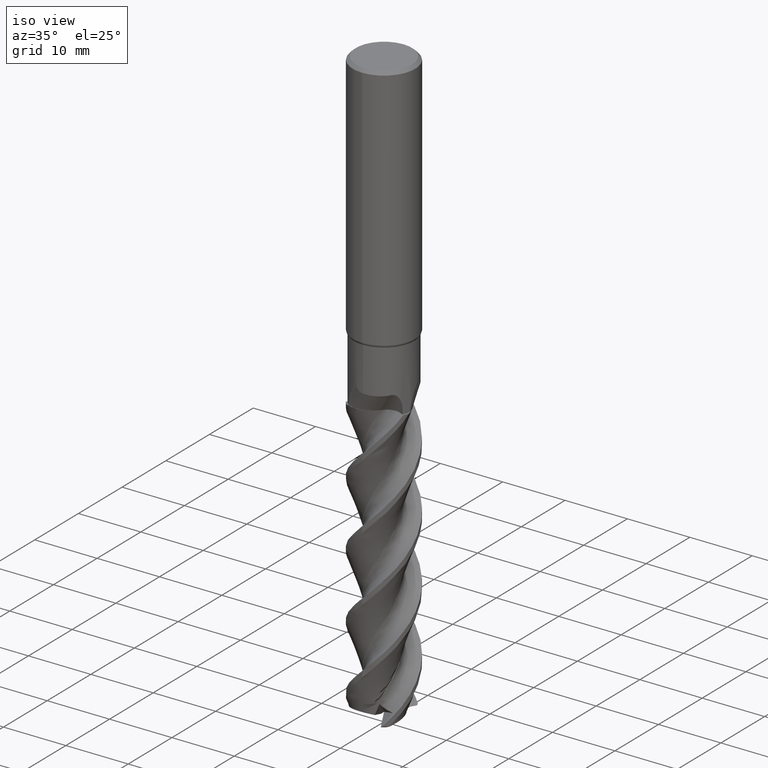
[diagram: clean part render]
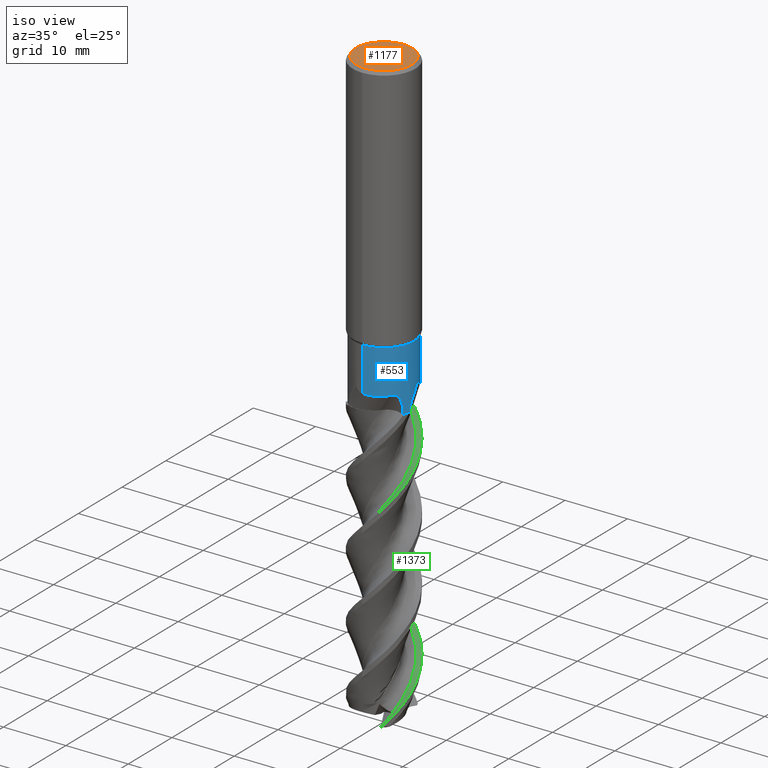
[diagram: same view with three faces highlighted in distinct colors, each labeled with its STEP entity id]
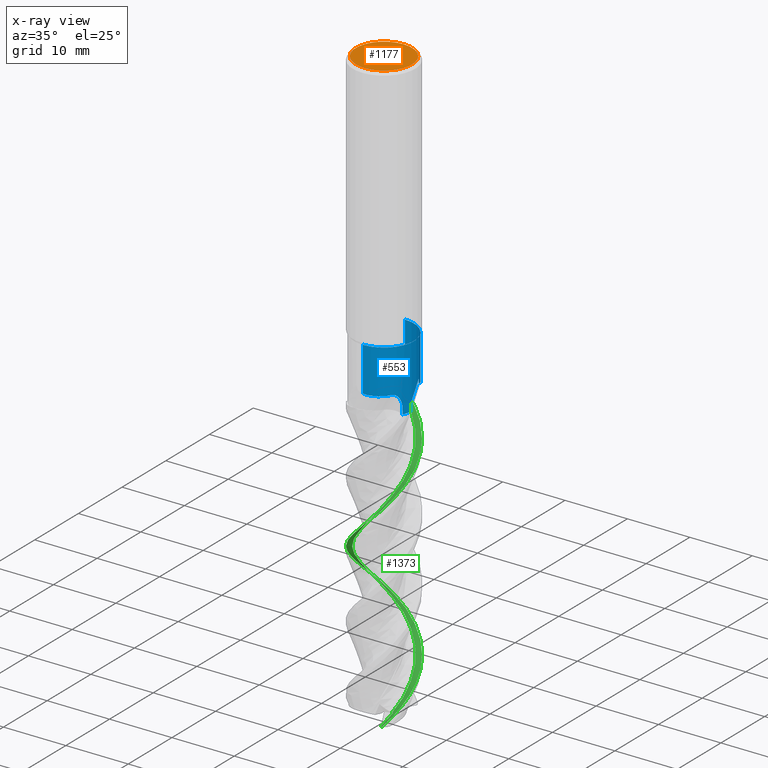
[diagram: x-ray of the same camera — body ghosted, the three highlighted faces saturated]
A machine part, iso view with three faces highlighted in distinct colors.
The next image is the same camera in x-ray (body ghosted, the three faces saturated) — at least one of them is partly hidden behind the body in this view.
Their STEP definitions:

[orange] entity #1177 — the highlighted planar face has unit normal (-0, 0, 1).
#527=EDGE_CURVE('',#617,#1421,#1479,.T.);
#617=VERTEX_POINT('',#1578);
#815=EDGE_CURVE('',#1421,#617,#1793,.T.);
#1177=ADVANCED_FACE('',(#2185),#2186,.T.);
#1421=VERTEX_POINT('',#2459);
#1479=CIRCLE('',#2626,4.5);
#1578=CARTESIAN_POINT('',(0.0,4.5,0.0));
#1793=CIRCLE('',#6891,4.5);
#2185=FACE_OUTER_BOUND('',#11739,.T.);
#2186=PLANE('',#11740);
#2459=CARTESIAN_POINT('',(5.5107285922007E-016,-4.5,0.0));
#2626=AXIS2_PLACEMENT_3D('',#15110,#15111,#15112);
#6891=AXIS2_PLACEMENT_3D('',#15406,#15407,#15408);
#11739=EDGE_LOOP('',(#15752,#15753));
#11740=AXIS2_PLACEMENT_3D('',#15754,#15755,#15756);
#15110=CARTESIAN_POINT('',(0.0,0.0,0.0));
#15111=DIRECTION('',(0.0,0.0,-1.0));
#15112=DIRECTION('',(0.0,1.0,0.0));
#15406=CARTESIAN_POINT('',(0.0,0.0,0.0));
#15407=DIRECTION('',(0.0,0.0,-1.0));
#15408=DIRECTION('',(0.0,1.0,0.0));
#15752=ORIENTED_EDGE('',*,*,#527,.F.);
#15753=ORIENTED_EDGE('',*,*,#815,.F.);
#15754=CARTESIAN_POINT('',(0.0,2.25,0.0));
#15755=DIRECTION('',(-0.0,0.0,1.0));
#15756=DIRECTION('',(0.0,-1.0,0.0));

[blue] entity #553 — the highlighted cylindrical surface (edge-blend (fillet) strip) has radius 4.7999 mm, axis along (-0, -0, 1).
#499=VERTEX_POINT('',#1450);
#553=ADVANCED_FACE('',(#1507),#1508,.T.);
#567=VERTEX_POINT('',#1523);
#593=VERTEX_POINT('',#1553);
#595=EDGE_CURVE('',#1119,#1023,#1555,.T.);
#611=EDGE_CURVE('',#1011,#1023,#1572,.T.);
#613=VERTEX_POINT('',#1574);
#637=VERTEX_POINT('',#1602);
#647=EDGE_CURVE('',#1011,#1391,#1613,.T.);
#667=EDGE_CURVE('',#637,#1419,#1633,.T.);
#687=EDGE_CURVE('',#1419,#613,#1657,.T.);
#709=EDGE_CURVE('',#593,#1119,#1680,.T.);
#763=EDGE_CURVE('',#567,#1391,#1739,.T.);
#791=VERTEX_POINT('',#1768);
#903=EDGE_CURVE('',#567,#637,#1893,.T.);
#1011=VERTEX_POINT('',#2010);
#1023=VERTEX_POINT('',#2022);
#1113=EDGE_CURVE('',#499,#613,#2119,.T.);
#1119=VERTEX_POINT('',#2125);
#1225=EDGE_CURVE('',#791,#593,#2238,.T.);
#1235=EDGE_CURVE('',#499,#791,#2248,.T.);
#1391=VERTEX_POINT('',#2426);
#1419=VERTEX_POINT('',#2457);
#1450=CARTESIAN_POINT('',(4.73819999226036,-0.76745086868405,-49.9999999999988));
#1507=FACE_OUTER_BOUND('',#3364,.T.);
#1508=CYLINDRICAL_SURFACE('',#3365,4.79995);
#1523=CARTESIAN_POINT('',(2.49206177107095E-013,-4.79994999999999,-47.0784756930732));
#1553=CARTESIAN_POINT('',(4.58955623045155,1.40552253984892,-46.2993889745058));
#1555=B_SPLINE_CURVE_WITH_KNOTS('',3,(#4268,#4269,#4270,#4271,#4272,#4273,#4274,#4275,#4276,#4277,#4278,#4279,#4280,#4281),.UNSPECIFIED.,.F.,.F.,(4,2,2,2,2,2,4),(0.0,0.452692046670512,0.846425998886289,1.28490236387175,1.91080408490039,2.61551723668776,3.35633987552227),.UNSPECIFIED.);
#1572=LINE('',#4410,#4411);
#1574=CARTESIAN_POINT('',(4.37337970053339,-1.9781481232361,-50.0));
#1602=CARTESIAN_POINT('',(3.27473191852015,-3.50936616276007,-46.9830052611491));
#1613=CIRCLE('',#4860,4.79995);
#1633=B_SPLINE_CURVE_WITH_KNOTS('',3,(#4903,#4904,#4905,#4906,#4907,#4908,#4909,#4910,#4911,#4912,#4913,#4914,#4915,#4916),.UNSPECIFIED.,.F.,.F.,(4,2,2,2,2,2,4),(0.0,0.452692046670354,0.846425998886049,1.28490236387158,1.91080408490017,2.61551723668794,3.35633987552279),.UNSPECIFIED.);
#1657=B_SPLINE_CURVE_WITH_KNOTS('',3,(#4996,#4997,#4998,#4999),.UNSPECIFIED.,.F.,.F.,(4,4),(0.0,0.82497646648205),.UNSPECIFIED.);
#1680=B_SPLINE_CURVE_WITH_KNOTS('',3,(#5495,#5496,#5497,#5498,#5499,#5500,#5501,#5502,#5503,#5504,#5505,#5506,#5507,#5508,#5509,#5510),.UNSPECIFIED.,.F.,.F.,(4,2,2,2,2,2,2,4),(0.0,0.366408586330008,0.668613674198747,1.01258864601547,1.57150034356199,2.56511215651367,3.45385883300285,4.34847679414206),.UNSPECIFIED.);
#1739=LINE('',#6280,#6281);
#1768=CARTESIAN_POINT('',(4.75822167358372,-0.631542957793187,-49.1026553486826));
#1893=B_SPLINE_CURVE_WITH_KNOTS('',3,(#8101,#8102,#8103,#8104,#8105,#8106,#8107,#8108,#8109,#8110,#8111,#8112,#8113,#8114,#8115,#8116),.UNSPECIFIED.,.F.,.F.,(4,2,2,2,2,2,2,4),(0.0,0.366408586294404,0.668613674102897,1.01258864584714,1.57150034329705,2.56511215611628,3.45385883248679,4.3484767935067),.UNSPECIFIED.);
#2010=CARTESIAN_POINT('',(0.0,4.79995,-40.0));
#2022=CARTESIAN_POINT('',(5.55370807304914E-012,4.79995000000001,-47.5625681019199));
#2119=CIRCLE('',#11479,4.79995);
#2125=CARTESIAN_POINT('',(1.40183428887172,4.59068411340222,-46.9830052611477));
#2238=B_SPLINE_CURVE_WITH_KNOTS('',3,(#11926,#11927,#11928,#11929,#11930,#11931,#11932,#11933,#11934,#11935,#11936,#11937,#11938,#11939,#11940,#11941,#11942,#11943,#11944,#11945,#11946,#11947,#11948,#11949,#11950,#11951,#11952,#11953,#11954,#11955,#11956,#11957,#11958,#11959,#11960,#11961,#11962,#11963,#11964,#11965,#11966,#11967,#11968,#11969,#11970,#11971,#11972,#11973),.UNSPECIFIED.,.F.,.F.,(4,2,2,2,2,2,2,2,2,2,2,2,2,2,2,2,2,2,2,2,2,2,2,4),(0.0,0.0273905906308628,0.0747221131477852,0.190667684201144,0.538809423901157,0.590535120962178,0.852658075841562,1.38052392399415,1.42893815924494,1.44944561418543,1.46230987948221,1.47637023335102,1.49568674892948,1.54054469225818,1.69335228754785,1.9636573539273,2.10524099918274,2.14175094610402,2.15916967281307,2.16965269393388,2.17849704701676,2.18849989604593,2.20475986532984,2.2535218669292),.UNSPECIFIED.);
#2248=B_SPLINE_CURVE_WITH_KNOTS('',3,(#11997,#11998,#11999,#12000),.UNSPECIFIED.,.F.,.F.,(4,4),(0.0,0.988405006263507),.UNSPECIFIED.);
#2426=CARTESIAN_POINT('',(5.87804926802972E-016,-4.79995,-40.0));
#2457=CARTESIAN_POINT('',(4.36676621567779,-1.99270490040925,-49.1751689168421));
#3364=EDGE_LOOP('',(#15139,#15140,#15141,#15142,#15143,#15144,#15145,#15146,#15147,#15148,#15149));
#3365=AXIS2_PLACEMENT_3D('',#15150,#15151,#15152);
#4268=CARTESIAN_POINT('',(1.40183428888989,4.59068411339667,-46.9830052614163));
#4269=CARTESIAN_POINT('',(1.26527213739653,4.63238541581679,-46.9342016748878));
#4270=CARTESIAN_POINT('',(1.12187379267276,4.66942943932078,-46.9092617922834));
#4271=CARTESIAN_POINT('',(0.846323949353884,4.72656235863823,-46.9243757055379));
#4272=CARTESIAN_POINT('',(0.722266106357804,4.74679552562783,-46.9560480392353));
#4273=CARTESIAN_POINT('',(0.472257716264012,4.77850638149488,-47.0711632057662));
#4274=CARTESIAN_POINT('',(0.353651026264184,4.78805529668703,-47.1573166023373));
#4275=CARTESIAN_POINT('',(0.0991397972768095,4.80126555635782,-47.4040329171657));
#4276=CARTESIAN_POINT('',(-0.0230156548225953,4.80086807977109,-47.5809406692397));
#4277=CARTESIAN_POINT('',(-0.228452602413729,4.79574548295396,-47.9757693581252));
#4278=CARTESIAN_POINT('',(-0.308938484804929,4.7903145016001,-48.2034315688507));
#4279=CARTESIAN_POINT('',(-0.42163655759007,4.78174630508755,-48.6755254605518));
#4280=CARTESIAN_POINT('',(-0.452593858385933,4.7785672121856,-48.9258441997493));
#4281=CARTESIAN_POINT('',(-0.457650041739211,4.77808292537878,-49.175168916841));
#4410=CARTESIAN_POINT('',(-5.87259881335247E-016,4.79995,-45.0));
#4411=VECTOR('',#15210,1.0);
#4860=AXIS2_PLACEMENT_3D('',#15257,#15258,#15259);
#4903=CARTESIAN_POINT('',(3.27473191850624,-3.50936616277305,-46.9830052614178));
#4904=CARTESIAN_POINT('',(3.3791273815196,-3.41195052159443,-46.9342016748892));
#4905=CARTESIAN_POINT('',(3.48290761929437,-3.306285923955,-46.9092617922848));
#4906=CARTESIAN_POINT('',(3.67016110047511,-3.09621921929073,-46.9243757055393));
#4907=CARTESIAN_POINT('',(3.74971245858515,-2.99889855921218,-46.9560480392368));
#4908=CARTESIAN_POINT('',(3.9021790603886,-2.79824037016531,-47.0711632057676));
#4909=CARTESIAN_POINT('',(3.96975200852349,-2.70029842116278,-47.1573166023386));
#4910=CARTESIAN_POINT('',(4.10844804348272,-2.48649036114664,-47.4040329171671));
#4911=CARTESIAN_POINT('',(4.16918154471091,-2.3805018981244,-47.5809406692413));
#4912=CARTESIAN_POINT('',(4.26746371952947,-2.20002698422602,-47.9757693581267));
#4913=CARTESIAN_POINT('',(4.30300329290512,-2.12760867475229,-48.2034315688522));
#4914=CARTESIAN_POINT('',(4.35193205345321,-2.02572518250654,-48.6755254605533));
#4915=CARTESIAN_POINT('',(4.36465752863708,-1.99732582713375,-48.9258441997508));
#4916=CARTESIAN_POINT('',(4.36676621563629,-1.99270490050021,-49.1751689168426));
#4996=CARTESIAN_POINT('',(4.36676621567779,-1.99270490040923,-49.1751689168421));
#4997=CARTESIAN_POINT('',(4.36909150493826,-1.98760931672185,-49.4501040248948));
#4998=CARTESIAN_POINT('',(4.371296157765,-1.98275451420421,-49.7250541731618));
#4999=CARTESIAN_POINT('',(4.37337970053338,-1.97814812323612,-49.9999999999989));
#5495=CARTESIAN_POINT('',(4.58955623019504,1.40552254068652,-46.2993889733675));
#5496=CARTESIAN_POINT('',(4.58542195581513,1.41902249119487,-46.4207063643261));
#5497=CARTESIAN_POINT('',(4.57649827986569,1.44826097075037,-46.5229082507194));
#5498=CARTESIAN_POINT('',(4.54940715859333,1.53100065416602,-46.6815062371984));
#5499=CARTESIAN_POINT('',(4.53313536328979,1.57927898628277,-46.7426085835689));
#5500=CARTESIAN_POINT('',(4.48745696450712,1.70508836920828,-46.8549503869816));
#5501=CARTESIAN_POINT('',(4.45772445478678,1.78200662295641,-46.9003181884793));
#5502=CARTESIAN_POINT('',(4.37056741758847,1.98922746662968,-46.9939809232204));
#5503=CARTESIAN_POINT('',(4.30071936346814,2.13927356957843,-47.0337455650602));
#5504=CARTESIAN_POINT('',(4.05843967002423,2.58328910835523,-47.112733354156));
#5505=CARTESIAN_POINT('',(3.83377815958863,2.92596688369374,-47.132145363543));
#5506=CARTESIAN_POINT('',(3.22911803747643,3.57603461868873,-47.1303464070983));
#5507=CARTESIAN_POINT('',(2.90371362135231,3.84500787864085,-47.1139510887875));
#5508=CARTESIAN_POINT('',(2.19006232277108,4.29203914883341,-47.0629619963956));
#5509=CARTESIAN_POINT('',(1.80437373912653,4.46776265114276,-47.0278983496727));
#5510=CARTESIAN_POINT('',(1.40183428887169,4.59068411340224,-46.9830052611477));
#6280=CARTESIAN_POINT('',(5.88349972270697E-016,-4.79995,-45.0));
#6281=VECTOR('',#15379,1.0);
#8101=CARTESIAN_POINT('',(-1.07755988927118,-4.67743355778935,-46.2993889733687));
#8102=CARTESIAN_POINT('',(-1.0638014519925,-4.680603146404,-46.4207063643155));
#8103=CARTESIAN_POINT('',(-1.03401834795783,-4.68749425611376,-46.5229082507122));
#8104=CARTESIAN_POINT('',(-0.948818119578294,-4.70540249858361,-46.6815062371993));
#8105=CARTESIAN_POINT('',(-0.898871959861693,-4.71544987654382,-46.7426085835697));
#8106=CARTESIAN_POINT('',(-0.767078638821618,-4.73879591425673,-46.8549503869831));
#8107=CARTESIAN_POINT('',(-0.685599222200647,-4.75150593239473,-46.9003181884808));
#8108=CARTESIAN_POINT('',(-0.462562188782146,-4.77963614589962,-46.9939809232238));
#8109=CARTESIAN_POINT('',(-0.297694424827064,-4.79416900810045,-47.0337455650627));
#8110=CARTESIAN_POINT('',(0.207974158143213,-4.80635640814512,-47.1127333541573));
#8111=CARTESIAN_POINT('',(0.617072572116454,-4.78313272052459,-47.1321453635444));
#8112=CARTESIAN_POINT('',(1.48237780585888,-4.58451556161749,-47.1303464070997));
#8113=CARTESIAN_POINT('',(1.87801768997817,-4.43719370072642,-47.1139510887889));
#8114=CARTESIAN_POINT('',(2.62198377554167,-4.04266918180754,-47.062961996397));
#8115=CARTESIAN_POINT('',(2.96700908440585,-3.79651482157629,-47.0278983496741));
#8116=CARTESIAN_POINT('',(3.27473191852015,-3.50936616276006,-46.9830052611491));
#11479=AXIS2_PLACEMENT_3D('',#15719,#15720,#15721);
#11926=CARTESIAN_POINT('',(4.75822167358372,-0.631542957793157,-49.1026553486825));
#11927=CARTESIAN_POINT('',(4.75745111263002,-0.63734858001647,-49.0956509585286));
#11928=CARTESIAN_POINT('',(4.75686977990157,-0.641654421514637,-49.0874771926208));
#11929=CARTESIAN_POINT('',(4.75568233277131,-0.650412866708932,-49.0641927117567));
#11930=CARTESIAN_POINT('',(4.75532611311276,-0.652989008083238,-49.047560793241));
#11931=CARTESIAN_POINT('',(4.75483668363129,-0.656547500728748,-48.9932999343255));
#11932=CARTESIAN_POINT('',(4.75566818529434,-0.650535423326304,-48.9489712027275));
#11933=CARTESIAN_POINT('',(4.75968931484038,-0.620793463764927,-48.7974292343407));
#11934=CARTESIAN_POINT('',(4.76716250577552,-0.566503909267138,-48.6438143487788));
#11935=CARTESIAN_POINT('',(4.77697602302594,-0.46923343014928,-48.4319041353501));
#11936=CARTESIAN_POINT('',(4.77822819503262,-0.456321438678568,-48.4045545289239));
#11937=CARTESIAN_POINT('',(4.78561679332831,-0.376641247050646,-48.2397706051545));
#11938=CARTESIAN_POINT('',(4.79108618649914,-0.301587942345538,-48.1010098971716));
#11939=CARTESIAN_POINT('',(4.80195632753551,-0.0695221770376246,-47.6993064064789));
#11940=CARTESIAN_POINT('',(4.80220604923588,0.107285692050527,-47.428528910408));
#11941=CARTESIAN_POINT('',(4.79023037776601,0.305764587836556,-47.1504168035832));
#11942=CARTESIAN_POINT('',(4.78913091341125,0.322538044902532,-47.1271131735196));
#11943=CARTESIAN_POINT('',(4.78742951503072,0.346539898203598,-47.0940548460335));
#11944=CARTESIAN_POINT('',(4.78690598356421,0.353698860706887,-47.0842307330767));
#11945=CARTESIAN_POINT('',(4.7860256353269,0.365375142616801,-47.068266812333));
#11946=CARTESIAN_POINT('',(4.78567937953766,0.369882930775773,-47.0621180122993));
#11947=CARTESIAN_POINT('',(4.78494015437165,0.379331273844059,-47.0492601905522));
#11948=CARTESIAN_POINT('',(4.78454580694793,0.384273455135538,-47.0425517490789));
#11949=CARTESIAN_POINT('',(4.78358982715623,0.396023888323824,-47.0266429003931));
#11950=CARTESIAN_POINT('',(4.7830206961941,0.402839948706671,-47.0174472271442));
#11951=CARTESIAN_POINT('',(4.78107672512292,0.425533579555427,-46.9869402300385));
#11952=CARTESIAN_POINT('',(4.77963070454016,0.441485704485859,-46.9656729892369));
#11953=CARTESIAN_POINT('',(4.77286740431264,0.51211877955581,-46.8723120818642));
#11954=CARTESIAN_POINT('',(4.7665580999398,0.568078278233609,-46.8004523587886));
#11955=CARTESIAN_POINT('',(4.74595163914301,0.725046340887238,-46.6058535228082));
#11956=CARTESIAN_POINT('',(4.72816859929028,0.834473535975371,-46.4777835544345));
#11957=CARTESIAN_POINT('',(4.69480299759093,1.00087364809098,-46.3057157819784));
#11958=CARTESIAN_POINT('',(4.66974866474179,1.11565081590106,-46.1903816442277));
#11959=CARTESIAN_POINT('',(4.63514413404103,1.24729206050147,-46.1060496944097));
#11960=CARTESIAN_POINT('',(4.62648066558454,1.2791372777628,-46.0884487943579));
#11961=CARTESIAN_POINT('',(4.6137661393404,1.32397455212048,-46.0749110764771));
#11962=CARTESIAN_POINT('',(4.60921047605378,1.33975507877285,-46.0719627371356));
#11963=CARTESIAN_POINT('',(4.60213555863482,1.36380240367179,-46.0737054667946));
#11964=CARTESIAN_POINT('',(4.59951496259181,1.37260833535967,-46.0758245146746));
#11965=CARTESIAN_POINT('',(4.59502958982872,1.38754242707771,-46.0835528081638));
#11966=CARTESIAN_POINT('',(4.59323541291163,1.39346196262766,-46.0883515270007));
#11967=CARTESIAN_POINT('',(4.58996193861832,1.40420972822313,-46.1010716590272));
#11968=CARTESIAN_POINT('',(4.58864750807698,1.4084904563571,-46.1089608909139));
#11969=CARTESIAN_POINT('',(4.58604985168658,1.41693213058839,-46.1308995410624));
#11970=CARTESIAN_POINT('',(4.58525439709252,1.41949408625602,-46.1461131174403));
#11971=CARTESIAN_POINT('',(4.58388208805964,1.42392313578849,-46.204448621399));
#11972=CARTESIAN_POINT('',(4.58658617032707,1.41522089584299,-46.2567631826962));
#11973=CARTESIAN_POINT('',(4.58955623045156,1.40552253984892,-46.2993889745058));
#11997=CARTESIAN_POINT('',(4.73819999226036,-0.767450868684051,-49.9999999999989));
#11998=CARTESIAN_POINT('',(4.74985139147888,-0.695515762555811,-49.6786917843433));
#11999=CARTESIAN_POINT('',(4.7570563635324,-0.640322730358866,-49.3659461192538));
#12000=CARTESIAN_POINT('',(4.75822167346876,-0.631542958659312,-49.1026553498905));
#15139=ORIENTED_EDGE('',*,*,#611,.F.);
#15140=ORIENTED_EDGE('',*,*,#647,.T.);
#15141=ORIENTED_EDGE('',*,*,#763,.F.);
#15142=ORIENTED_EDGE('',*,*,#903,.T.);
#15143=ORIENTED_EDGE('',*,*,#667,.T.);
#15144=ORIENTED_EDGE('',*,*,#687,.T.);
#15145=ORIENTED_EDGE('',*,*,#1113,.F.);
#15146=ORIENTED_EDGE('',*,*,#1235,.T.);
#15147=ORIENTED_EDGE('',*,*,#1225,.T.);
#15148=ORIENTED_EDGE('',*,*,#709,.T.);
#15149=ORIENTED_EDGE('',*,*,#595,.T.);
#15150=CARTESIAN_POINT('',(0.0,0.0,-45.0));
#15151=DIRECTION('',(-0.0,-0.0,1.0));
#15152=DIRECTION('',(0.0,1.0,0.0));
#15210=DIRECTION('',(0.0,0.0,-1.0));
#15257=CARTESIAN_POINT('',(0.0,0.0,-40.0));
#15258=DIRECTION('',(0.0,0.0,-1.0));
#15259=DIRECTION('',(0.0,1.0,0.0));
#15379=DIRECTION('',(-0.0,-0.0,1.0));
#15719=CARTESIAN_POINT('',(0.0,0.0,-50.0));
#15720=DIRECTION('',(0.0,0.0,-1.0));
#15721=DIRECTION('',(0.0,1.0,0.0));

[green] entity #1373 — the highlighted face is a freeform B-spline surface patch.
#501=EDGE_CURVE('',#1037,#1109,#1452,.T.);
#531=EDGE_CURVE('',#835,#1083,#1483,.T.);
#633=VERTEX_POINT('',#1597);
#705=EDGE_CURVE('',#755,#875,#1676,.T.);
#727=VERTEX_POINT('',#1699);
#755=VERTEX_POINT('',#1730);
#789=EDGE_CURVE('',#1091,#755,#1766,.T.);
#819=VERTEX_POINT('',#1797);
#821=EDGE_CURVE('',#633,#727,#1799,.T.);
#835=VERTEX_POINT('',#1815);
#875=VERTEX_POINT('',#1859);
#979=EDGE_CURVE('',#1109,#1165,#1976,.T.);
#1033=EDGE_CURVE('',#819,#1091,#2033,.T.);
#1037=VERTEX_POINT('',#2037);
#1083=VERTEX_POINT('',#2087);
#1091=VERTEX_POINT('',#2095);
#1109=VERTEX_POINT('',#2115);
#1161=EDGE_CURVE('',#1165,#835,#2168,.T.);
#1165=VERTEX_POINT('',#2172);
#1175=EDGE_CURVE('',#875,#633,#2183,.T.);
#1303=EDGE_CURVE('',#727,#1037,#2328,.T.);
#1363=EDGE_CURVE('',#1083,#819,#2395,.T.);
#1373=ADVANCED_FACE('',(#2406),#2407,.T.);
#1452=B_SPLINE_CURVE_WITH_KNOTS('',3,(#2483,#2484,#2485,#2486,#2487,#2488),.UNSPECIFIED.,.F.,.F.,(4,2,4),(0.0,0.525446395647796,1.05312699214597),.UNSPECIFIED.);
#1483=B_SPLINE_CURVE_WITH_KNOTS('',3,(#2633,#2634,#2635,#2636,#2637,#2638,#2639,#2640,#2641,#2642,#2643,#2644,#2645,#2646,#2647,#2648,#2649,#2650,#2651,#2652,#2653,#2654,#2655,#2656,#2657,#2658,#2659,#2660,#2661,#2662,#2663,#2664,#2665,#2666,#2667,#2668,#2669,#2670,#2671,#2672,#2673,#2674,#2675,#2676,#2677,#2678,#2679,#2680,#2681,#2682,#2683,#2684,#2685,#2686,#2687,#2688,#2689,#2690,#2691,#2692,#2693,#2694,#2695,#2696,#2697,#2698,#2699,#2700,#2701,#2702,#2703,#2704,#2705,#2706,#2707,#2708,#2709,#2710,#2711,#2712,#2713,#2714),.UNSPECIFIED.,.F.,.F.,(4,2,2,2,2,2,2,2,2,2,2,2,2,2,2,2,2,2,2,2,2,2,2,2,2,2,2,2,2,2,2,2,2,2,2,2,2,2,2,2,4),(0.0,1.96066590899026,2.99072053008805,3.78806851851612,4.54283927465344,4.91143705589236,5.25001423174582,5.52800690501319,6.0126127907863,6.61849215361893,6.96044514781041,7.47881574654968,8.08577661534649,8.39310739953504,8.69550619586772,9.16955495655005,9.93777672924309,10.2611865679932,10.5801505185358,11.547090234751,12.2330880127781,12.5957226411716,13.1326655159509,13.9321559701824,14.2941923236322,14.6753897697257,15.7153830026426,16.4873415585409,16.7595849897676,17.0844513048367,17.2875937371712,17.5343106890396,17.6658462565813,17.8732727519307,18.1199167652248,18.2450883304244,18.3725257536464,18.5644010482412,19.019445422877,19.1425719127802,19.5057328300131),.UNSPECIFIED.);
#1597=CARTESIAN_POINT('',(2.08590107132155,-3.62817969698362,-95.0));
#1676=B_SPLINE_CURVE_WITH_KNOTS('',3,(#5486,#5487,#5488,#5489),.UNSPECIFIED.,.F.,.F.,(4,4),(0.0,0.340596645112744),.UNSPECIFIED.);
#1699=CARTESIAN_POINT('',(2.09557440621916,-3.62260533735628,-94.9861235587227));
#1730=CARTESIAN_POINT('',(2.66164734276815,-4.23268631282017,-94.8));
#1766=B_SPLINE_CURVE_WITH_KNOTS('',3,(#6531,#6532,#6533,#6534,#6535,#6536,#6537,#6538,#6539,#6540,#6541,#6542,#6543,#6544,#6545,#6546,#6547,#6548,#6549,#6550,#6551,#6552,#6553,#6554,#6555,#6556,#6557,#6558,#6559,#6560,#6561,#6562,#6563,#6564,#6565,#6566,#6567,#6568,#6569,#6570,#6571,#6572,#6573,#6574,#6575,#6576,#6577,#6578,#6579,#6580,#6581,#6582,#6583,#6584,#6585,#6586,#6587,#6588,#6589,#6590,#6591,#6592,#6593,#6594,#6595,#6596,#6597,#6598,#6599,#6600,#6601,#6602,#6603,#6604,#6605,#6606,#6607,#6608,#6609,#6610,#6611,#6612),.UNSPECIFIED.,.F.,.F.,(4,2,2,2,2,2,2,2,2,2,2,2,2,2,2,2,2,2,2,2,2,2,2,2,2,2,2,2,2,2,2,2,2,2,2,2,2,2,2,2,4),(0.0,1.96066590899026,2.99072053008805,3.78806851851612,4.54283927465344,4.91143705589236,5.25001423174582,5.52800690501319,6.0126127907863,6.61849215361893,6.96044514781041,7.47881574654968,8.08577661534649,8.39310739953504,8.69550619586772,9.16955495655005,9.93777672924309,10.2611865679932,10.5801505185358,11.547090234751,12.2330880127781,12.5957226411716,13.1326655159509,13.9321559701824,14.2941923236322,14.6753897697257,15.7153830026426,16.4873415585409,16.7595849897676,17.0844513048367,17.2875937371712,17.5343106890396,17.6658462565813,17.8732727519307,18.1199167652248,18.2450883304244,18.3725257536464,18.5644010482412,19.019445422877,19.1425719127802,19.5057328300131),.UNSPECIFIED.);
#1797=CARTESIAN_POINT('',(1.74986196554185E-013,-4.99993613341439,-66.1877696467244));
#1799=B_SPLINE_CURVE_WITH_KNOTS('',3,(#6898,#6899,#6900,#6901,#6902,#6903,#6904,#6905,#6906,#6907,#6908,#6909,#6910,#6911,#6912,#6913,#6914,#6915,#6916,#6917,#6918,#6919,#6920,#6921,#6922,#6923,#6924,#6925,#6926,#6927,#6928,#6929,#6930,#6931,#6932,#6933,#6934,#6935,#6936,#6937,#6938,#6939,#6940,#6941,#6942,#6943,#6944,#6945,#6946,#6947,#6948,#6949,#6950,#6951,#6952,#6953,#6954,#6955,#6956,#6957,#6958,#6959,#6960,#6961,#6962,#6963,#6964,#6965,#6966,#6967,#6968,#6969,#6970,#6971,#6972,#6973,#6974,#6975,#6976,#6977,#6978,#6979,#6980,#6981,#6982,#6983,#6984),.UNSPECIFIED.,.F.,.F.,(4,1,2,1,2,1,2,1,2,1,2,1,1,1,2,1,1,1,2,1,1,1,2,1,1,1,2,1,1,1,2,1,1,1,2,1,1,1,2,1,1,1,2,1,1,1,2,1,1,1,2,1,1,1,2,1,1,1,2,1,1,1,2,1,1,1,4),(0.0,0.510337287577128,1.02067457515426,1.53101186273138,2.04134915030851,3.06202372546277,4.08269830061702,5.10337287577128,6.12404745092554,7.14472202607979,8.16539660123405,9.1860711763883,10.2067457515426,11.2274203266968,12.2480949018511,13.2687694770053,14.2894440521596,15.3101186273138,16.3307932024681,17.3514677776224,18.3721423527766,19.3928169279309,20.4134915030851,21.4341660782394,22.4548406533936,23.4755152285479,24.4961898037021,25.5168643788564,26.5375389540107,27.5582135291649,28.5788881043192,29.5995626794734,30.6202372546277,31.6409118297819,32.6615864049362,33.6822609800904,34.7029355552447,35.723610130399,36.7442847055532,37.7649592807075,38.7856338558617,39.806308431016,40.8269830061702,41.8476575813245,42.8683321564788,43.889006731633,44.9096813067873,45.9303558819415,46.9510304570958,47.97170503225,48.9923796074043,50.0130541825585,51.0337287577128,52.054403332867,53.0750779080213,54.0957524831756,55.1164270583298,56.1371016334841,57.1577762086383,58.1784507837926,59.1991253589468,60.2197999341011,61.2404745092554,62.2611490844096,63.2818236595639,64.3024982347181,65.3231728098724),.UNSPECIFIED.);
#1815=CARTESIAN_POINT('',(-0.480932365021297,4.97671619346282,-50.0));
#1859=CARTESIAN_POINT('',(2.39598499958499,-4.15923741589293,-95.0));
#1976=B_SPLINE_CURVE_WITH_KNOTS('',3,(#9253,#9254,#9255,#9256,#9257,#9258,#9259,#9260,#9261,#9262,#9263,#9264,#9265,#9266,#9267,#9268,#9269,#9270,#9271,#9272,#9273,#9274,#9275,#9276,#9277,#9278,#9279,#9280,#9281,#9282,#9283,#9284,#9285,#9286,#9287,#9288,#9289,#9290,#9291,#9292,#9293,#9294,#9295,#9296,#9297,#9298,#9299,#9300,#9301,#9302,#9303,#9304,#9305,#9306,#9307,#9308,#9309,#9310,#9311,#9312,#9313,#9314,#9315,#9316,#9317,#9318,#9319,#9320,#9321,#9322,#9323,#9324,#9325,#9326,#9327,#9328,#9329,#9330,#9331,#9332,#9333,#9334,#9335,#9336,#9337,#9338,#9339),.UNSPECIFIED.,.F.,.F.,(4,1,2,1,2,1,2,1,2,1,2,1,1,1,2,1,1,1,2,1,1,1,2,1,1,1,2,1,1,1,2,1,1,1,2,1,1,1,2,1,1,1,2,1,1,1,2,1,1,1,2,1,1,1,2,1,1,1,2,1,1,1,2,1,1,1,4),(0.0,0.510337287577128,1.02067457515426,1.53101186273138,2.04134915030851,3.06202372546277,4.08269830061702,5.10337287577128,6.12404745092554,7.14472202607979,8.16539660123405,9.1860711763883,10.2067457515426,11.2274203266968,12.2480949018511,13.2687694770053,14.2894440521596,15.3101186273138,16.3307932024681,17.3514677776224,18.3721423527766,19.3928169279309,20.4134915030851,21.4341660782394,22.4548406533936,23.4755152285479,24.4961898037021,25.5168643788564,26.5375389540107,27.5582135291649,28.5788881043192,29.5995626794734,30.6202372546277,31.6409118297819,32.6615864049362,33.6822609800904,34.7029355552447,35.723610130399,36.7442847055532,37.7649592807075,38.7856338558617,39.806308431016,40.8269830061702,41.8476575813245,42.8683321564788,43.889006731633,44.9096813067873,45.9303558819415,46.9510304570958,47.97170503225,48.9923796074043,50.0130541825585,51.0337287577128,52.054403332867,53.0750779080213,54.0957524831756,55.1164270583298,56.1371016334841,57.1577762086383,58.1784507837926,59.1991253589468,60.2197999341011,61.2404745092554,62.2611490844096,63.2818236595639,64.3024982347181,65.3231728098724),.UNSPECIFIED.);
#2033=B_SPLINE_CURVE_WITH_KNOTS('',3,(#10314,#10315,#10316,#10317,#10318,#10319,#10320,#10321,#10322,#10323,#10324,#10325,#10326,#10327,#10328,#10329,#10330,#10331,#10332,#10333,#10334,#10335,#10336,#10337,#10338,#10339,#10340,#10341,#10342,#10343,#10344,#10345,#10346,#10347,#10348,#10349,#10350,#10351,#10352,#10353,#10354,#10355,#10356,#10357,#10358,#10359,#10360,#10361,#10362,#10363,#10364,#10365,#10366,#10367,#10368,#10369,#10370,#10371,#10372,#10373,#10374,#10375,#10376,#10377,#10378,#10379,#10380,#10381,#10382,#10383,#10384,#10385,#10386,#10387,#10388,#10389,#10390,#10391,#10392,#10393,#10394,#10395),.UNSPECIFIED.,.F.,.F.,(4,2,2,2,2,2,2,2,2,2,2,2,2,2,2,2,2,2,2,2,2,2,2,2,2,2,2,2,2,2,2,2,2,2,2,2,2,2,2,2,4),(0.0,1.96066590899026,2.99072053008805,3.78806851851612,4.54283927465344,4.91143705589236,5.25001423174582,5.52800690501319,6.0126127907863,6.61849215361893,6.96044514781041,7.47881574654968,8.08577661534649,8.39310739953504,8.69550619586772,9.16955495655005,9.93777672924309,10.2611865679932,10.5801505185358,11.547090234751,12.2330880127781,12.5957226411716,13.1326655159509,13.9321559701824,14.2941923236322,14.6753897697257,15.7153830026426,16.4873415585409,16.7595849897676,17.0844513048367,17.2875937371712,17.5343106890396,17.6658462565813,17.8732727519307,18.1199167652248,18.2450883304244,18.3725257536464,18.5644010482412,19.019445422877,19.1425719127802,19.5057328300131),.UNSPECIFIED.);
#2037=CARTESIAN_POINT('',(3.40146228995007,-2.80624656098492,-93.1809938018011));
#2087=CARTESIAN_POINT('',(1.64817182670957E-011,4.99990111178916,-50.4980815417727));
#2095=CARTESIAN_POINT('',(-5.18093018086802E-013,4.99997116175308,-81.8804653802801));
#2115=CARTESIAN_POINT('',(3.20045277712346,-2.69574450097323,-93.2284745724258));
#2168=B_SPLINE_CURVE_WITH_KNOTS('',3,(#11622,#11623,#11624,#11625),.UNSPECIFIED.,.F.,.F.,(4,4),(0.0,0.888571794568144),.UNSPECIFIED.);
#2172=CARTESIAN_POINT('',(-0.397857426521244,4.16595642854956,-50.0));
#2183=B_SPLINE_CURVE_WITH_KNOTS('',3,(#11734,#11735,#11736,#11737),.UNSPECIFIED.,.F.,.F.,(4,4),(0.0,0.675687618497865),.UNSPECIFIED.);
#2328=B_SPLINE_CURVE_WITH_KNOTS('',3,(#12824,#12825,#12826,#12827,#12828,#12829,#12830,#12831,#12832,#12833,#12834,#12835,#12836,#12837,#12838,#12839,#12840,#12841,#12842,#12843,#12844,#12845,#12846,#12847,#12848,#12849,#12850,#12851,#12852,#12853,#12854,#12855),.UNSPECIFIED.,.F.,.F.,(4,2,2,2,2,2,2,2,2,2,2,2,2,2,2,4),(0.0,0.129567315859516,0.230739469065211,0.370792709616997,0.57897821543948,0.684581642040612,0.776219419217703,0.889134199240904,1.12408278594264,1.59689411534485,1.59765076503812,1.60112099468084,1.60641967854449,1.62187405535673,1.65905709332458,1.75953754871053),.UNSPECIFIED.);
#2395=B_SPLINE_CURVE_WITH_KNOTS('',3,(#13826,#13827,#13828,#13829,#13830,#13831,#13832,#13833,#13834,#13835,#13836,#13837,#13838,#13839,#13840,#13841,#13842,#13843,#13844,#13845,#13846,#13847,#13848,#13849,#13850,#13851,#13852,#13853,#13854,#13855,#13856,#13857,#13858,#13859,#13860,#13861,#13862,#13863,#13864,#13865,#13866,#13867,#13868,#13869,#13870,#13871,#13872,#13873,#13874,#13875,#13876,#13877,#13878,#13879,#13880,#13881,#13882,#13883,#13884,#13885,#13886,#13887,#13888,#13889,#13890,#13891,#13892,#13893,#13894,#13895,#13896,#13897,#13898,#13899,#13900,#13901,#13902,#13903,#13904,#13905,#13906,#13907),.UNSPECIFIED.,.F.,.F.,(4,2,2,2,2,2,2,2,2,2,2,2,2,2,2,2,2,2,2,2,2,2,2,2,2,2,2,2,2,2,2,2,2,2,2,2,2,2,2,2,4),(0.0,1.96066590899026,2.99072053008805,3.78806851851612,4.54283927465344,4.91143705589236,5.25001423174582,5.52800690501319,6.0126127907863,6.61849215361893,6.96044514781041,7.47881574654968,8.08577661534649,8.39310739953504,8.69550619586772,9.16955495655005,9.93777672924309,10.2611865679932,10.5801505185358,11.547090234751,12.2330880127781,12.5957226411716,13.1326655159509,13.9321559701824,14.2941923236322,14.6753897697257,15.7153830026426,16.4873415585409,16.7595849897676,17.0844513048367,17.2875937371712,17.5343106890396,17.6658462565813,17.8732727519307,18.1199167652248,18.2450883304244,18.3725257536464,18.5644010482412,19.019445422877,19.1425719127802,19.5057328300131),.UNSPECIFIED.);
#2406=FACE_OUTER_BOUND('',#13932,.T.);
#2407=B_SPLINE_SURFACE_WITH_KNOTS('',3,3,((#13933,#13934,#13935,#13936,#13937,#13938,#13939,#13940,#13941,#13942,#13943,#13944,#13945,#13946,#13947,#13948,#13949,#13950,#13951,#13952,#13953,#13954,#13955,#13956,#13957,#13958,#13959,#13960,#13961,#13962,#13963,#13964,#13965,#13966,#13967,#13968,#13969,#13970,#13971,#13972,#13973,#13974,#13975,#13976,#13977,#13978,#13979,#13980,#13981,#13982,#13983,#13984,#13985,#13986,#13987,#13988,#13989,#13990,#13991,#13992,#13993,#13994,#13995,#13996,#13997,#13998,#13999,#14000,#14001,#14002,#14003,#14004,#14005,#14006,#14007,#14008,#14009,#14010,#14011,#14012,#14013,#14014,#14015,#14016,#14017,#14018,#14019),(#14020,#14021,#14022,#14023,#14024,#14025,#14026,#14027,#14028,#14029,#14030,#14031,#14032,#14033,#14034,#14035,#14036,#14037,#14038,#14039,#14040,#14041,#14042,#14043,#14044,#14045,#14046,#14047,#14048,#14049,#14050,#14051,#14052,#14053,#14054,#14055,#14056,#14057,#14058,#14059,#14060,#14061,#14062,#14063,#14064,#14065,#14066,#14067,#14068,#14069,#14070,#14071,#14072,#14073,#14074,#14075,#14076,#14077,#14078,#14079,#14080,#14081,#14082,#14083,#14084,#14085,#14086,#14087,#14088,#14089,#14090,#14091,#14092,#14093,#14094,#14095,#14096,#14097,#14098,#14099,#14100,#14101,#14102,#14103,#14104,#14105,#14106),(#14107,#14108,#14109,#14110,#14111,#14112,#14113,#14114,#14115,#14116,#14117,#14118,#14119,#14120,#14121,#14122,#14123,#14124,#14125,#14126,#14127,#14128,#14129,#14130,#14131,#14132,#14133,#14134,#14135,#14136,#14137,#14138,#14139,#14140,#14141,#14142,#14143,#14144,#14145,#14146,#14147,#14148,#14149,#14150,#14151,#14152,#14153,#14154,#14155,#14156,#14157,#14158,#14159,#14160,#14161,#14162,#14163,#14164,#14165,#14166,#14167,#14168,#14169,#14170,#14171,#14172,#14173,#14174,#14175,#14176,#14177,#14178,#14179,#14180,#14181,#14182,#14183,#14184,#14185,#14186,#14187,#14188,#14189,#14190,#14191,#14192,#14193),(#14194,#14195,#14196,#14197,#14198,#14199,#14200,#14201,#14202,#14203,#14204,#14205,#14206,#14207,#14208,#14209,#14210,#14211,#14212,#14213,#14214,#14215,#14216,#14217,#14218,#14219,#14220,#14221,#14222,#14223,#14224,#14225,#14226,#14227,#14228,#14229,#14230,#14231,#14232,#14233,#14234,#14235,#14236,#14237,#14238,#14239,#14240,#14241,#14242,#14243,#14244,#14245,#14246,#14247,#14248,#14249,#14250,#14251,#14252,#14253,#14254,#14255,#14256,#14257,#14258,#14259,#14260,#14261,#14262,#14263,#14264,#14265,#14266,#14267,#14268,#14269,#14270,#14271,#14272,#14273,#14274,#14275,#14276,#14277,#14278,#14279,#14280)),.UNSPECIFIED.,.F.,.F.,.F.,(4,4),(4,1,2,1,2,1,2,1,2,1,2,1,1,1,2,1,1,1,2,1,1,1,2,1,1,1,2,1,1,1,2,1,1,1,2,1,1,1,2,1,1,1,2,1,1,1,2,1,1,1,2,1,1,1,2,1,1,1,2,1,1,1,2,1,1,1,4),(-8.88178419700125E-016,1.01666666666667),(0.0,0.510337287577128,1.02067457515426,1.53101186273138,2.04134915030851,3.06202372546277,4.08269830061702,5.10337287577128,6.12404745092554,7.14472202607979,8.16539660123405,9.1860711763883,10.2067457515426,11.2274203266968,12.2480949018511,13.2687694770053,14.2894440521596,15.3101186273138,16.3307932024681,17.3514677776224,18.3721423527766,19.3928169279309,20.4134915030851,21.4341660782394,22.4548406533936,23.4755152285479,24.4961898037021,25.5168643788564,26.5375389540107,27.5582135291649,28.5788881043192,29.5995626794734,30.6202372546277,31.6409118297819,32.6615864049362,33.6822609800904,34.7029355552447,35.723610130399,36.7442847055532,37.7649592807075,38.7856338558617,39.806308431016,40.8269830061702,41.8476575813245,42.8683321564788,43.889006731633,44.9096813067873,45.9303558819415,46.9510304570958,47.97170503225,48.9923796074043,50.0130541825585,51.0337287577128,52.054403332867,53.0750779080213,54.0957524831756,55.1164270583298,56.1371016334841,57.1577762086383,58.1784507837926,59.1991253589468,60.2197999341011,61.2404745092554,62.2611490844096,63.2818236595639,64.3024982347181,65.3231728098724),.UNSPECIFIED.);
#2483=CARTESIAN_POINT('',(4.1155887022271,-3.18000601531327,-93.0327220226823));
#2484=CARTESIAN_POINT('',(3.9614309745069,-3.10208893547997,-93.0617293543011));
#2485=CARTESIAN_POINT('',(3.80786540568677,-3.02285663727712,-93.0923763411318));
#2486=CARTESIAN_POINT('',(3.50284231730609,-2.8616722868854,-93.1573790615114));
#2487=CARTESIAN_POINT('',(3.35081217504282,-2.77940145168141,-93.1918743848226));
#2488=CARTESIAN_POINT('',(3.20045277715623,-2.69574450093311,-93.2284745724816));
#2633=CARTESIAN_POINT('',(-0.480932365021308,4.97671619346282,-50.0));
#2634=CARTESIAN_POINT('',(-0.0287265123864652,5.02041683163406,-50.4698240682866));
#2635=CARTESIAN_POINT('',(0.43237394774814,5.00275185790623,-50.9448145006589));
#2636=CARTESIAN_POINT('',(1.12911259049352,4.87684395755327,-51.6490596760748));
#2637=CARTESIAN_POINT('',(1.36848115833878,4.81548119850421,-51.8887139597253));
#2638=CARTESIAN_POINT('',(1.78871302079661,4.6730121029924,-52.3076359215294));
#2639=CARTESIAN_POINT('',(2.21760889610364,4.52137395808962,-52.731033567923));
#2640=CARTESIAN_POINT('',(3.19942841011299,3.88416199522417,-53.9190173501379));
#2641=CARTESIAN_POINT('',(3.62026408736416,3.49526457534714,-54.5152838949222));
#2642=CARTESIAN_POINT('',(4.13604453985255,2.82303872921158,-55.3750415603969));
#2643=CARTESIAN_POINT('',(4.28871680315578,2.58601034647953,-55.654567748021));
#2644=CARTESIAN_POINT('',(4.5442246161632,2.10186917254706,-56.1819582845659));
#2645=CARTESIAN_POINT('',(4.64582535645356,1.86691422023692,-56.4179889942272));
#2646=CARTESIAN_POINT('',(4.80152589250518,1.41125402518685,-56.8856253153244));
#2647=CARTESIAN_POINT('',(4.85755396572651,1.20359085755286,-57.0990582464117));
#2648=CARTESIAN_POINT('',(4.9737503714868,0.631386086353746,-57.6890648763954));
#2649=CARTESIAN_POINT('',(5.0064172559903,0.263003420168183,-58.0711339941969));
#2650=CARTESIAN_POINT('',(4.98939468928283,-0.561176128932367,-58.9239149883393));
#2651=CARTESIAN_POINT('',(4.91693356206358,-1.02321949706964,-59.398989120134));
#2652=CARTESIAN_POINT('',(4.69844594102623,-1.73066036086694,-60.1194212352711));
#2653=CARTESIAN_POINT('',(4.60294811482991,-1.97019078290375,-60.3573911946495));
#2654=CARTESIAN_POINT('',(4.31009135454238,-2.56557739671822,-60.9956713978715));
#2655=CARTESIAN_POINT('',(4.09447078823288,-2.8955165912749,-61.3901028868034));
#2656=CARTESIAN_POINT('',(3.55851598314843,-3.54134709128658,-62.2519309694594));
#2657=CARTESIAN_POINT('',(3.22259784791578,-3.84987276088909,-62.7254615300236));
#2658=CARTESIAN_POINT('',(2.65882666145152,-4.24064942224633,-63.4224190419881));
#2659=CARTESIAN_POINT('',(2.45860098778163,-4.36004241412696,-63.6550406645859));
#2660=CARTESIAN_POINT('',(2.04157365111815,-4.57000137285465,-64.1105616070128));
#2661=CARTESIAN_POINT('',(1.83737124648908,-4.65544293525615,-64.3172289577634));
#2662=CARTESIAN_POINT('',(1.29574888959306,-4.84176162164795,-64.861955718593));
#2663=CARTESIAN_POINT('',(0.959875057268946,-4.91858847990846,-65.2017841004622));
#2664=CARTESIAN_POINT('',(0.0799425500112407,-5.02928980052427,-66.1024158740319));
#2665=CARTESIAN_POINT('',(-0.471288988580903,-5.00775725527506,-66.6762394299563));
#2666=CARTESIAN_POINT('',(-1.23408591369497,-4.85073774093455,-67.468096137551));
#2667=CARTESIAN_POINT('',(-1.45879357746364,-4.78818872175431,-67.7010801985518));
#2668=CARTESIAN_POINT('',(-1.89924195488125,-4.63100491142627,-68.1578591002776));
#2669=CARTESIAN_POINT('',(-2.10246785461494,-4.54188192204546,-68.3654501597066));
#2670=CARTESIAN_POINT('',(-2.90008416314666,-4.12858906284417,-69.2187614749101));
#2671=CARTESIAN_POINT('',(-3.41607311592713,-3.70738280580577,-69.894825067677));
#2672=CARTESIAN_POINT('',(-4.12379264366196,-2.86401491130981,-71.0343705658942));
#2673=CARTESIAN_POINT('',(-4.37270410001898,-2.46998100514901,-71.5095397162978));
#2674=CARTESIAN_POINT('',(-4.6664697556857,-1.81261002039604,-72.2139690594239));
#2675=CARTESIAN_POINT('',(-4.74700831587171,-1.58840446799706,-72.4363121706174));
#2676=CARTESIAN_POINT('',(-4.90866044617547,-1.01532385842381,-73.0030696126503));
#2677=CARTESIAN_POINT('',(-4.96677347069322,-0.670018923805709,-73.3488773328418));
#2678=CARTESIAN_POINT('',(-5.02273087103927,0.184017714447066,-74.2190733517026));
#2679=CARTESIAN_POINT('',(-4.9775265736197,0.696360760095815,-74.7537838560737));
#2680=CARTESIAN_POINT('',(-4.80044070931764,1.41735200937462,-75.5112165361262));
#2681=CARTESIAN_POINT('',(-4.7292040319881,1.64007981299752,-75.7458920182113));
#2682=CARTESIAN_POINT('',(-4.54912335549495,2.08968114160898,-76.2215425924027));
#2683=CARTESIAN_POINT('',(-4.44429458638581,2.30293625618967,-76.4452208063817));
#2684=CARTESIAN_POINT('',(-4.00317893448696,3.06408258498293,-77.2785886880975));
#2685=CARTESIAN_POINT('',(-3.58425764531508,3.53962275024959,-77.9187528914416));
#2686=CARTESIAN_POINT('',(-2.74637263669104,4.20289954135638,-79.0250370222966));
#2687=CARTESIAN_POINT('',(-2.34770036679095,4.43917612487885,-79.5001876760125));
#2688=CARTESIAN_POINT('',(-1.76392003529275,4.68138997312629,-80.1241327884998));
#2689=CARTESIAN_POINT('',(-1.6074284194559,4.73750511586747,-80.2854270774409));
#2690=CARTESIAN_POINT('',(-1.25546759815343,4.84391420257479,-80.6357660779909));
#2691=CARTESIAN_POINT('',(-0.807261750420024,4.97211580592592,-81.0635912251856));
#2692=CARTESIAN_POINT('',(0.185825308137769,5.0111266325512,-82.0675010430818));
#2693=CARTESIAN_POINT('',(0.56588770022957,4.98216549741698,-82.4614388073078));
#2694=CARTESIAN_POINT('',(1.38697946993063,4.82557646077622,-83.3260369499565));
#2695=CARTESIAN_POINT('',(1.83097443402301,4.67675546755134,-83.80114757284));
#2696=CARTESIAN_POINT('',(2.47975668227898,4.34907596691257,-84.5071435991025));
#2697=CARTESIAN_POINT('',(2.68861001371102,4.22296593012109,-84.7325693745238));
#2698=CARTESIAN_POINT('',(3.21324815127971,3.85093859044059,-85.3507043837674));
#2699=CARTESIAN_POINT('',(3.50067872051659,3.59026113375594,-85.7384314179884));
#2700=CARTESIAN_POINT('',(4.05146550094571,2.96485346657621,-86.59314757291));
#2701=CARTESIAN_POINT('',(4.30383378245635,2.58528655809673,-87.0662690227363));
#2702=CARTESIAN_POINT('',(4.6021997760306,1.96796320033369,-87.7635917127327));
#2703=CARTESIAN_POINT('',(4.68911302610363,1.75143374155199,-87.9967703008574));
#2704=CARTESIAN_POINT('',(4.83426954298929,1.29891311113822,-88.4613099923391));
#2705=CARTESIAN_POINT('',(4.88820945740306,1.07619574022127,-88.6755648592561));
#2706=CARTESIAN_POINT('',(4.98614592746412,0.508138548069147,-89.2232613155438));
#2707=CARTESIAN_POINT('',(5.00840279258879,0.167648498517135,-89.5595738782789));
#2708=CARTESIAN_POINT('',(4.97059504951808,-0.961678091500037,-90.7065718533868));
#2709=CARTESIAN_POINT('',(4.75440837366613,-1.74983036461861,-91.5560899372996));
#2710=CARTESIAN_POINT('',(4.24400938263197,-2.65275758157825,-92.5643296000609));
#2711=CARTESIAN_POINT('',(4.12824181019861,-2.82892172180377,-92.7606315017887));
#2712=CARTESIAN_POINT('',(3.62445895882926,-3.50095660766878,-93.5570820919753));
#2713=CARTESIAN_POINT('',(3.16717349075212,-3.9147938082355,-94.1795538380242));
#2714=CARTESIAN_POINT('',(2.66164734276814,-4.23268631282018,-94.8));
#5486=CARTESIAN_POINT('',(2.66164734276819,-4.23268631282018,-94.8));
#5487=CARTESIAN_POINT('',(2.5720894749319,-4.21075348334046,-94.8662412496181));
#5488=CARTESIAN_POINT('',(2.48349525509157,-4.1862545890047,-94.9329074798371));
#5489=CARTESIAN_POINT('',(2.39598499958498,-4.15923741589294,-95.0));
#6531=CARTESIAN_POINT('',(-0.480932365021308,4.97671619346282,-50.0));
#6532=CARTESIAN_POINT('',(-0.0287265123864652,5.02041683163406,-50.4698240682866));
#6533=CARTESIAN_POINT('',(0.43237394774814,5.00275185790623,-50.9448145006589));
#6534=CARTESIAN_POINT('',(1.12911259049352,4.87684395755327,-51.6490596760748));
#6535=CARTESIAN_POINT('',(1.36848115833878,4.81548119850421,-51.8887139597253));
#6536=CARTESIAN_POINT('',(1.78871302079661,4.6730121029924,-52.3076359215294));
#6537=CARTESIAN_POINT('',(2.21760889610364,4.52137395808962,-52.731033567923));
#6538=CARTESIAN_POINT('',(3.19942841011299,3.88416199522417,-53.9190173501379));
#6539=CARTESIAN_POINT('',(3.62026408736416,3.49526457534714,-54.5152838949222));
#6540=CARTESIAN_POINT('',(4.13604453985255,2.82303872921158,-55.3750415603969));
#6541=CARTESIAN_POINT('',(4.28871680315578,2.58601034647953,-55.654567748021));
#6542=CARTESIAN_POINT('',(4.5442246161632,2.10186917254706,-56.1819582845659));
#6543=CARTESIAN_POINT('',(4.64582535645356,1.86691422023692,-56.4179889942272));
#6544=CARTESIAN_POINT('',(4.80152589250518,1.41125402518685,-56.8856253153244));
#6545=CARTESIAN_POINT('',(4.85755396572651,1.20359085755286,-57.0990582464117));
#6546=CARTESIAN_POINT('',(4.9737503714868,0.631386086353746,-57.6890648763954));
#6547=CARTESIAN_POINT('',(5.0064172559903,0.263003420168183,-58.0711339941969));
#6548=CARTESIAN_POINT('',(4.98939468928283,-0.561176128932367,-58.9239149883393));
#6549=CARTESIAN_POINT('',(4.91693356206358,-1.02321949706964,-59.398989120134));
#6550=CARTESIAN_POINT('',(4.69844594102623,-1.73066036086694,-60.1194212352711));
#6551=CARTESIAN_POINT('',(4.60294811482991,-1.97019078290375,-60.3573911946495));
#6552=CARTESIAN_POINT('',(4.31009135454238,-2.56557739671822,-60.9956713978715));
#6553=CARTESIAN_POINT('',(4.09447078823288,-2.8955165912749,-61.3901028868034));
#6554=CARTESIAN_POINT('',(3.55851598314843,-3.54134709128658,-62.2519309694594));
#6555=CARTESIAN_POINT('',(3.22259784791578,-3.84987276088909,-62.7254615300236));
#6556=CARTESIAN_POINT('',(2.65882666145152,-4.24064942224633,-63.4224190419881));
#6557=CARTESIAN_POINT('',(2.45860098778163,-4.36004241412696,-63.6550406645859));
#6558=CARTESIAN_POINT('',(2.04157365111815,-4.57000137285465,-64.1105616070128));
#6559=CARTESIAN_POINT('',(1.83737124648908,-4.65544293525615,-64.3172289577634));
#6560=CARTESIAN_POINT('',(1.29574888959306,-4.84176162164795,-64.861955718593));
#6561=CARTESIAN_POINT('',(0.959875057268946,-4.91858847990846,-65.2017841004622));
#6562=CARTESIAN_POINT('',(0.0799425500112407,-5.02928980052427,-66.1024158740319));
#6563=CARTESIAN_POINT('',(-0.471288988580903,-5.00775725527506,-66.6762394299563));
#6564=CARTESIAN_POINT('',(-1.23408591369497,-4.85073774093455,-67.468096137551));
#6565=CARTESIAN_POINT('',(-1.45879357746364,-4.78818872175431,-67.7010801985518));
#6566=CARTESIAN_POINT('',(-1.89924195488125,-4.63100491142627,-68.1578591002776));
#6567=CARTESIAN_POINT('',(-2.10246785461494,-4.54188192204546,-68.3654501597066));
#6568=CARTESIAN_POINT('',(-2.90008416314666,-4.12858906284417,-69.2187614749101));
#6569=CARTESIAN_POINT('',(-3.41607311592713,-3.70738280580577,-69.894825067677));
#6570=CARTESIAN_POINT('',(-4.12379264366196,-2.86401491130981,-71.0343705658942));
#6571=CARTESIAN_POINT('',(-4.37270410001898,-2.46998100514901,-71.5095397162978));
#6572=CARTESIAN_POINT('',(-4.6664697556857,-1.81261002039604,-72.2139690594239));
#6573=CARTESIAN_POINT('',(-4.74700831587171,-1.58840446799706,-72.4363121706174));
#6574=CARTESIAN_POINT('',(-4.90866044617547,-1.01532385842381,-73.0030696126503));
#6575=CARTESIAN_POINT('',(-4.96677347069322,-0.670018923805709,-73.3488773328418));
#6576=CARTESIAN_POINT('',(-5.02273087103927,0.184017714447066,-74.2190733517026));
#6577=CARTESIAN_POINT('',(-4.9775265736197,0.696360760095815,-74.7537838560737));
#6578=CARTESIAN_POINT('',(-4.80044070931764,1.41735200937462,-75.5112165361262));
#6579=CARTESIAN_POINT('',(-4.7292040319881,1.64007981299752,-75.7458920182113));
#6580=CARTESIAN_POINT('',(-4.54912335549495,2.08968114160898,-76.2215425924027));
#6581=CARTESIAN_POINT('',(-4.44429458638581,2.30293625618967,-76.4452208063817));
#6582=CARTESIAN_POINT('',(-4.00317893448696,3.06408258498293,-77.2785886880975));
#6583=CARTESIAN_POINT('',(-3.58425764531508,3.53962275024959,-77.9187528914416));
#6584=CARTESIAN_POINT('',(-2.74637263669104,4.20289954135638,-79.0250370222966));
#6585=CARTESIAN_POINT('',(-2.34770036679095,4.43917612487885,-79.5001876760125));
#6586=CARTESIAN_POINT('',(-1.76392003529275,4.68138997312629,-80.1241327884998));
#6587=CARTESIAN_POINT('',(-1.6074284194559,4.73750511586747,-80.2854270774409));
#6588=CARTESIAN_POINT('',(-1.25546759815343,4.84391420257479,-80.6357660779909));
#6589=CARTESIAN_POINT('',(-0.807261750420024,4.97211580592592,-81.0635912251856));
#6590=CARTESIAN_POINT('',(0.185825308137769,5.0111266325512,-82.0675010430818));
#6591=CARTESIAN_POINT('',(0.56588770022957,4.98216549741698,-82.4614388073078));
#6592=CARTESIAN_POINT('',(1.38697946993063,4.82557646077622,-83.3260369499565));
#6593=CARTESIAN_POINT('',(1.83097443402301,4.67675546755134,-83.80114757284));
#6594=CARTESIAN_POINT('',(2.47975668227898,4.34907596691257,-84.5071435991025));
#6595=CARTESIAN_POINT('',(2.68861001371102,4.22296593012109,-84.7325693745238));
#6596=CARTESIAN_POINT('',(3.21324815127971,3.85093859044059,-85.3507043837674));
#6597=CARTESIAN_POINT('',(3.50067872051659,3.59026113375594,-85.7384314179884));
#6598=CARTESIAN_POINT('',(4.05146550094571,2.96485346657621,-86.59314757291));
#6599=CARTESIAN_POINT('',(4.30383378245635,2.58528655809673,-87.0662690227363));
#6600=CARTESIAN_POINT('',(4.6021997760306,1.96796320033369,-87.7635917127327));
#6601=CARTESIAN_POINT('',(4.68911302610363,1.75143374155199,-87.9967703008574));
#6602=CARTESIAN_POINT('',(4.83426954298929,1.29891311113822,-88.4613099923391));
#6603=CARTESIAN_POINT('',(4.88820945740306,1.07619574022127,-88.6755648592561));
#6604=CARTESIAN_POINT('',(4.98614592746412,0.508138548069147,-89.2232613155438));
#6605=CARTESIAN_POINT('',(5.00840279258879,0.167648498517135,-89.5595738782789));
#6606=CARTESIAN_POINT('',(4.97059504951808,-0.961678091500037,-90.7065718533868));
#6607=CARTESIAN_POINT('',(4.75440837366613,-1.74983036461861,-91.5560899372996));
#6608=CARTESIAN_POINT('',(4.24400938263197,-2.65275758157825,-92.5643296000609));
#6609=CARTESIAN_POINT('',(4.12824181019861,-2.82892172180377,-92.7606315017887));
#6610=CARTESIAN_POINT('',(3.62445895882926,-3.50095660766878,-93.5570820919753));
#6611=CARTESIAN_POINT('',(3.16717349075212,-3.9147938082355,-94.1795538380242));
#6612=CARTESIAN_POINT('',(2.66164734276814,-4.23268631282018,-94.8));
#6898=CARTESIAN_POINT('',(-4.13287004557301,-0.647813988875755,-105.0));
#6899=CARTESIAN_POINT('',(-4.13585836495339,-0.634964856725862,-104.830735320782));
#6900=CARTESIAN_POINT('',(-4.12838047031015,-0.705516624285408,-104.492129541686));
#6901=CARTESIAN_POINT('',(-4.0754310471971,-0.970640783104866,-104.153494345371));
#6902=CARTESIAN_POINT('',(-3.97320290038868,-1.3245269470614,-103.815011850805));
#6903=CARTESIAN_POINT('',(-3.85636227129786,-1.64487007510773,-103.476558108605));
#6904=CARTESIAN_POINT('',(-3.7272353807034,-1.90559238281297,-103.138055274759));
#6905=CARTESIAN_POINT('',(-3.53155717790429,-2.2605316559116,-102.630202913134));
#6906=CARTESIAN_POINT('',(-3.22508979195509,-2.70869911360853,-101.953060438348));
#6907=CARTESIAN_POINT('',(-2.82028307922702,-3.10489495585877,-101.275939423935));
#6908=CARTESIAN_POINT('',(-2.36145077095107,-3.46642967736656,-100.598884397455));
#6909=CARTESIAN_POINT('',(-1.87943731214098,-3.76975559688389,-99.9218456062811));
#6910=CARTESIAN_POINT('',(-1.35412013496623,-3.96935878404347,-99.2447695367991));
#6911=CARTESIAN_POINT('',(-0.803441797943453,-4.11623758967103,-98.5676875346231));
#6912=CARTESIAN_POINT('',(-0.246131605778301,-4.20557081037909,-97.8905947251122));
#6913=CARTESIAN_POINT('',(0.330780737041655,-4.18158405235926,-97.2134719446062));
#6914=CARTESIAN_POINT('',(0.918224556874816,-4.09295065445332,-96.5363783593608));
#6915=CARTESIAN_POINT('',(1.47155566521826,-3.94662192192013,-95.8593359450012));
#6916=CARTESIAN_POINT('',(2.20707463769082,-3.58680292502391,-94.8437332558798));
#6917=CARTESIAN_POINT('',(2.86406576760203,-3.08974841024668,-93.8280363184939));
#6918=CARTESIAN_POINT('',(3.24945596707636,-2.6536731136473,-93.1508964491469));
#6919=CARTESIAN_POINT('',(3.59746354492648,-2.15791982825784,-92.4738256217826));
#6920=CARTESIAN_POINT('',(3.87664394202764,-1.6480831299313,-91.796813236983));
#6921=CARTESIAN_POINT('',(4.12244659661181,-0.861085294577474,-90.7812528668089));
#6922=CARTESIAN_POINT('',(4.21260077433095,-0.0420419801950889,-89.7655787056619));
#6923=CARTESIAN_POINT('',(4.16090895509451,0.535890728041071,-89.0884338088502));
#6924=CARTESIAN_POINT('',(4.04047957534776,1.12806295713617,-88.4113463131437));
#6925=CARTESIAN_POINT('',(3.86257629847535,1.68079443862236,-87.7343189477555));
#6926=CARTESIAN_POINT('',(3.46007882804448,2.40086873060051,-86.7187446366315));
#6927=CARTESIAN_POINT('',(2.92685027508518,3.03009578622272,-85.7030659802582));
#6928=CARTESIAN_POINT('',(2.47149406952521,3.38996320890999,-85.0259237628364));
#6929=CARTESIAN_POINT('',(1.95896302252068,3.7094982706516,-84.3488408004642));
#6930=CARTESIAN_POINT('',(1.43567507818533,3.96019650356693,-83.6718168120245));
#6931=CARTESIAN_POINT('',(0.636658578432094,4.16303903295297,-82.6562446047764));
#6932=CARTESIAN_POINT('',(-0.186553705073385,4.20870328532547,-81.6405659718579));
#6933=CARTESIAN_POINT('',(-0.761042978591293,4.12565872033223,-80.9634231306135));
#6934=CARTESIAN_POINT('',(-1.34571234816826,3.9732885841764,-80.2863396988221));
#6935=CARTESIAN_POINT('',(-1.88777211679805,3.76572930687304,-79.6093155449532));
#6936=CARTESIAN_POINT('',(-2.58465587588347,3.32502424898906,-78.593743563045));
#6937=CARTESIAN_POINT('',(-3.18394028050717,2.7587083104606,-77.5780652381681));
#6938=CARTESIAN_POINT('',(-3.51868182582065,2.28453284428221,-76.9009224280012));
#6939=CARTESIAN_POINT('',(-3.8100921259221,1.75531837486516,-76.2238388376739));
#6940=CARTESIAN_POINT('',(-4.03214941721874,1.21907910644601,-75.546814499364));
#6941=CARTESIAN_POINT('',(-4.19142656218713,0.410092293097209,-74.5312422811577));
#6942=CARTESIAN_POINT('',(-4.19239696160346,-0.41444180202898,-73.5155638356089));
#6943=CARTESIAN_POINT('',(-4.07833655019705,-0.983557738058689,-72.838421050233));
#6944=CARTESIAN_POINT('',(-3.89451870913169,-1.55906118693849,-72.1613375399714));
#6945=CARTESIAN_POINT('',(-3.65790827443899,-2.08904085407671,-71.4843132714511));
#6946=CARTESIAN_POINT('',(-3.1801107420271,-2.76100170922717,-70.468741113766));
#6947=CARTESIAN_POINT('',(-2.58216255254645,-3.32872276581958,-69.453062682872));
#6948=CARTESIAN_POINT('',(-2.09054276390646,-3.63728646754917,-68.7759198807125));
#6949=CARTESIAN_POINT('',(-1.54631211449101,-3.89959915070756,-68.0988363455029));
#6950=CARTESIAN_POINT('',(-0.998827084832765,-4.09227767654319,-67.4218120599126));
#6951=CARTESIAN_POINT('',(-0.182402411097688,-4.20748979191902,-66.4062398947854));
#6952=CARTESIAN_POINT('',(0.640965839782071,-4.16378744114717,-65.3905614654778));
#6953=CARTESIAN_POINT('',(1.20306154717081,-4.01906329436905,-64.7134186624645));
#6954=CARTESIAN_POINT('',(1.76775775323922,-3.80433849858663,-64.0363351206311));
#6955=CARTESIAN_POINT('',(2.28414023228386,-3.53936438725897,-63.3593108268835));
#6956=CARTESIAN_POINT('',(2.92923301469875,-3.02586198096617,-62.3437386724186));
#6957=CARTESIAN_POINT('',(3.46372895655717,-2.39803057207619,-61.3280602961669));
#6958=CARTESIAN_POINT('',(3.74520488793977,-1.89041508346054,-60.6509175650945));
#6959=CARTESIAN_POINT('',(3.97764644982601,-1.33277533279372,-59.9738341143987));
#6960=CARTESIAN_POINT('',(4.14037928230169,-0.775662511712129,-59.2968098667938));
#6961=CARTESIAN_POINT('',(4.21119301260755,0.0457982054696998,-58.2812376185679));
#6962=CARTESIAN_POINT('',(4.12294909605142,0.865600755924668,-57.2655589944309));
#6963=CARTESIAN_POINT('',(3.94797603874252,1.41905588831494,-56.5884160246136));
#6964=CARTESIAN_POINT('',(3.70295188414489,1.97132337747584,-55.911332328354));
#6965=CARTESIAN_POINT('',(3.41036661022631,2.47261158029768,-55.2343080475043));
#6966=CARTESIAN_POINT('',(2.86267566207601,3.08890213732774,-54.2187362107102));
#6967=CARTESIAN_POINT('',(2.20690731409777,3.5885181642875,-53.2030581962414));
#6968=CARTESIAN_POINT('',(1.68493569565514,3.84202934354114,-52.525915528532));
#6969=CARTESIAN_POINT('',(1.11570583118618,4.04389674739863,-51.8488319264076));
#6970=CARTESIAN_POINT('',(0.550681115713181,4.1762568616397,-51.1718072491097));
#6971=CARTESIAN_POINT('',(-0.273636641524889,4.202551318651,-50.1562346803158));
#6972=CARTESIAN_POINT('',(-1.08795341844195,4.06995176449516,-49.1405570771775));
#6973=CARTESIAN_POINT('',(-1.63149386828536,3.86503175915895,-48.46341629634));
#6974=CARTESIAN_POINT('',(-2.16997166578469,3.59016652488813,-47.7863357923622));
#6975=CARTESIAN_POINT('',(-2.6545554941648,3.27071798917947,-47.1093137914082));
#6976=CARTESIAN_POINT('',(-3.23963814295489,2.69086215063044,-46.0937394365309));
#6977=CARTESIAN_POINT('',(-3.70257328875674,2.00965778717636,-45.078051239723));
#6978=CARTESIAN_POINT('',(-3.9275219551016,1.47478244725528,-44.4008963968313));
#6979=CARTESIAN_POINT('',(-4.09842708133132,0.894941879382683,-43.7237984047807));
#6980=CARTESIAN_POINT('',(-4.2001520383448,0.322430504290701,-43.0467677995933));
#6981=CARTESIAN_POINT('',(-4.18133887897423,-0.502726461669997,-42.0312140143099));
#6982=CARTESIAN_POINT('',(-4.00515805285015,-1.30572017416127,-41.0155796161323));
#6983=CARTESIAN_POINT('',(-3.77383765317384,-1.83219894561797,-40.3384782345508));
#6984=CARTESIAN_POINT('',(-3.62469874067316,-2.09044736101246,-39.9999577526768));
#9253=CARTESIAN_POINT('',(-4.13287004557301,-0.647813988875755,-105.0));
#9254=CARTESIAN_POINT('',(-4.13585836495339,-0.634964856725862,-104.830735320782));
#9255=CARTESIAN_POINT('',(-4.12838047031015,-0.705516624285408,-104.492129541686));
#9256=CARTESIAN_POINT('',(-4.0754310471971,-0.970640783104866,-104.153494345371));
#9257=CARTESIAN_POINT('',(-3.97320290038868,-1.3245269470614,-103.815011850805));
#9258=CARTESIAN_POINT('',(-3.85636227129786,-1.64487007510773,-103.476558108605));
#9259=CARTESIAN_POINT('',(-3.7272353807034,-1.90559238281297,-103.138055274759));
#9260=CARTESIAN_POINT('',(-3.53155717790429,-2.2605316559116,-102.630202913134));
#9261=CARTESIAN_POINT('',(-3.22508979195509,-2.70869911360853,-101.953060438348));
#9262=CARTESIAN_POINT('',(-2.82028307922702,-3.10489495585877,-101.275939423935));
#9263=CARTESIAN_POINT('',(-2.36145077095107,-3.46642967736656,-100.598884397455));
#9264=CARTESIAN_POINT('',(-1.87943731214098,-3.76975559688389,-99.9218456062811));
#9265=CARTESIAN_POINT('',(-1.35412013496623,-3.96935878404347,-99.2447695367991));
#9266=CARTESIAN_POINT('',(-0.803441797943453,-4.11623758967103,-98.5676875346231));
#9267=CARTESIAN_POINT('',(-0.246131605778301,-4.20557081037909,-97.8905947251122));
#9268=CARTESIAN_POINT('',(0.330780737041655,-4.18158405235926,-97.2134719446062));
#9269=CARTESIAN_POINT('',(0.918224556874816,-4.09295065445332,-96.5363783593608));
#9270=CARTESIAN_POINT('',(1.47155566521826,-3.94662192192013,-95.8593359450012));
#9271=CARTESIAN_POINT('',(2.20707463769082,-3.58680292502391,-94.8437332558798));
#9272=CARTESIAN_POINT('',(2.86406576760203,-3.08974841024668,-93.8280363184939));
#9273=CARTESIAN_POINT('',(3.24945596707636,-2.6536731136473,-93.1508964491469));
#9274=CARTESIAN_POINT('',(3.59746354492648,-2.15791982825784,-92.4738256217826));
#9275=CARTESIAN_POINT('',(3.87664394202764,-1.6480831299313,-91.796813236983));
#9276=CARTESIAN_POINT('',(4.12244659661181,-0.861085294577474,-90.7812528668089));
#9277=CARTESIAN_POINT('',(4.21260077433095,-0.0420419801950889,-89.7655787056619));
#9278=CARTESIAN_POINT('',(4.16090895509451,0.535890728041071,-89.0884338088502));
#9279=CARTESIAN_POINT('',(4.04047957534776,1.12806295713617,-88.4113463131437));
#9280=CARTESIAN_POINT('',(3.86257629847535,1.68079443862236,-87.7343189477555));
#9281=CARTESIAN_POINT('',(3.46007882804448,2.40086873060051,-86.7187446366315));
#9282=CARTESIAN_POINT('',(2.92685027508518,3.03009578622272,-85.7030659802582));
#9283=CARTESIAN_POINT('',(2.47149406952521,3.38996320890999,-85.0259237628364));
#9284=CARTESIAN_POINT('',(1.95896302252068,3.7094982706516,-84.3488408004642));
#9285=CARTESIAN_POINT('',(1.43567507818533,3.96019650356693,-83.6718168120245));
#9286=CARTESIAN_POINT('',(0.636658578432094,4.16303903295297,-82.6562446047764));
#9287=CARTESIAN_POINT('',(-0.186553705073385,4.20870328532547,-81.6405659718579));
#9288=CARTESIAN_POINT('',(-0.761042978591293,4.12565872033223,-80.9634231306135));
#9289=CARTESIAN_POINT('',(-1.34571234816826,3.9732885841764,-80.2863396988221));
#9290=CARTESIAN_POINT('',(-1.88777211679805,3.76572930687304,-79.6093155449532));
#9291=CARTESIAN_POINT('',(-2.58465587588347,3.32502424898906,-78.593743563045));
#9292=CARTESIAN_POINT('',(-3.18394028050717,2.7587083104606,-77.5780652381681));
#9293=CARTESIAN_POINT('',(-3.51868182582065,2.28453284428221,-76.9009224280012));
#9294=CARTESIAN_POINT('',(-3.8100921259221,1.75531837486516,-76.2238388376739));
#9295=CARTESIAN_POINT('',(-4.03214941721874,1.21907910644601,-75.546814499364));
#9296=CARTESIAN_POINT('',(-4.19142656218713,0.410092293097209,-74.5312422811577));
#9297=CARTESIAN_POINT('',(-4.19239696160346,-0.41444180202898,-73.5155638356089));
#9298=CARTESIAN_POINT('',(-4.07833655019705,-0.983557738058689,-72.838421050233));
#9299=CARTESIAN_POINT('',(-3.89451870913169,-1.55906118693849,-72.1613375399714));
#9300=CARTESIAN_POINT('',(-3.65790827443899,-2.08904085407671,-71.4843132714511));
#9301=CARTESIAN_POINT('',(-3.1801107420271,-2.76100170922717,-70.468741113766));
#9302=CARTESIAN_POINT('',(-2.58216255254645,-3.32872276581958,-69.453062682872));
#9303=CARTESIAN_POINT('',(-2.09054276390646,-3.63728646754917,-68.7759198807125));
#9304=CARTESIAN_POINT('',(-1.54631211449101,-3.89959915070756,-68.0988363455029));
#9305=CARTESIAN_POINT('',(-0.998827084832765,-4.09227767654319,-67.4218120599126));
#9306=CARTESIAN_POINT('',(-0.182402411097688,-4.20748979191902,-66.4062398947854));
#9307=CARTESIAN_POINT('',(0.640965839782071,-4.16378744114717,-65.3905614654778));
#9308=CARTESIAN_POINT('',(1.20306154717081,-4.01906329436905,-64.7134186624645));
#9309=CARTESIAN_POINT('',(1.76775775323922,-3.80433849858663,-64.0363351206311));
#9310=CARTESIAN_POINT('',(2.28414023228386,-3.53936438725897,-63.3593108268835));
#9311=CARTESIAN_POINT('',(2.92923301469875,-3.02586198096617,-62.3437386724186));
#9312=CARTESIAN_POINT('',(3.46372895655717,-2.39803057207619,-61.3280602961669));
#9313=CARTESIAN_POINT('',(3.74520488793977,-1.89041508346054,-60.6509175650945));
#9314=CARTESIAN_POINT('',(3.97764644982601,-1.33277533279372,-59.9738341143987));
#9315=CARTESIAN_POINT('',(4.14037928230169,-0.775662511712129,-59.2968098667938));
#9316=CARTESIAN_POINT('',(4.21119301260755,0.0457982054696998,-58.2812376185679));
#9317=CARTESIAN_POINT('',(4.12294909605142,0.865600755924668,-57.2655589944309));
#9318=CARTESIAN_POINT('',(3.94797603874252,1.41905588831494,-56.5884160246136));
#9319=CARTESIAN_POINT('',(3.70295188414489,1.97132337747584,-55.911332328354));
#9320=CARTESIAN_POINT('',(3.41036661022631,2.47261158029768,-55.2343080475043));
#9321=CARTESIAN_POINT('',(2.86267566207601,3.08890213732774,-54.2187362107102));
#9322=CARTESIAN_POINT('',(2.20690731409777,3.5885181642875,-53.2030581962414));
#9323=CARTESIAN_POINT('',(1.68493569565514,3.84202934354114,-52.525915528532));
#9324=CARTESIAN_POINT('',(1.11570583118618,4.04389674739863,-51.8488319264076));
#9325=CARTESIAN_POINT('',(0.550681115713181,4.1762568616397,-51.1718072491097));
#9326=CARTESIAN_POINT('',(-0.273636641524889,4.202551318651,-50.1562346803158));
#9327=CARTESIAN_POINT('',(-1.08795341844195,4.06995176449516,-49.1405570771775));
#9328=CARTESIAN_POINT('',(-1.63149386828536,3.86503175915895,-48.46341629634));
#9329=CARTESIAN_POINT('',(-2.16997166578469,3.59016652488813,-47.7863357923622));
#9330=CARTESIAN_POINT('',(-2.6545554941648,3.27071798917947,-47.1093137914082));
#9331=CARTESIAN_POINT('',(-3.23963814295489,2.69086215063044,-46.0937394365309));
#9332=CARTESIAN_POINT('',(-3.70257328875674,2.00965778717636,-45.078051239723));
#9333=CARTESIAN_POINT('',(-3.9275219551016,1.47478244725528,-44.4008963968313));
#9334=CARTESIAN_POINT('',(-4.09842708133132,0.894941879382683,-43.7237984047807));
#9335=CARTESIAN_POINT('',(-4.2001520383448,0.322430504290701,-43.0467677995933));
#9336=CARTESIAN_POINT('',(-4.18133887897423,-0.502726461669997,-42.0312140143099));
#9337=CARTESIAN_POINT('',(-4.00515805285015,-1.30572017416127,-41.0155796161323));
#9338=CARTESIAN_POINT('',(-3.77383765317384,-1.83219894561797,-40.3384782345508));
#9339=CARTESIAN_POINT('',(-3.62469874067316,-2.09044736101246,-39.9999577526768));
#10314=CARTESIAN_POINT('',(-0.480932365021308,4.97671619346282,-50.0));
#10315=CARTESIAN_POINT('',(-0.0287265123864652,5.02041683163406,-50.4698240682866));
#10316=CARTESIAN_POINT('',(0.43237394774814,5.00275185790623,-50.9448145006589));
#10317=CARTESIAN_POINT('',(1.12911259049352,4.87684395755327,-51.6490596760748));
#10318=CARTESIAN_POINT('',(1.36848115833878,4.81548119850421,-51.8887139597253));
#10319=CARTESIAN_POINT('',(1.78871302079661,4.6730121029924,-52.3076359215294));
#10320=CARTESIAN_POINT('',(2.21760889610364,4.52137395808962,-52.731033567923));
#10321=CARTESIAN_POINT('',(3.19942841011299,3.88416199522417,-53.9190173501379));
#10322=CARTESIAN_POINT('',(3.62026408736416,3.49526457534714,-54.5152838949222));
#10323=CARTESIAN_POINT('',(4.13604453985255,2.82303872921158,-55.3750415603969));
#10324=CARTESIAN_POINT('',(4.28871680315578,2.58601034647953,-55.654567748021));
#10325=CARTESIAN_POINT('',(4.5442246161632,2.10186917254706,-56.1819582845659));
#10326=CARTESIAN_POINT('',(4.64582535645356,1.86691422023692,-56.4179889942272));
#10327=CARTESIAN_POINT('',(4.80152589250518,1.41125402518685,-56.8856253153244));
#10328=CARTESIAN_POINT('',(4.85755396572651,1.20359085755286,-57.0990582464117));
#10329=CARTESIAN_POINT('',(4.9737503714868,0.631386086353746,-57.6890648763954));
#10330=CARTESIAN_POINT('',(5.0064172559903,0.263003420168183,-58.0711339941969));
#10331=CARTESIAN_POINT('',(4.98939468928283,-0.561176128932367,-58.9239149883393));
#10332=CARTESIAN_POINT('',(4.91693356206358,-1.02321949706964,-59.398989120134));
#10333=CARTESIAN_POINT('',(4.69844594102623,-1.73066036086694,-60.1194212352711));
#10334=CARTESIAN_POINT('',(4.60294811482991,-1.97019078290375,-60.3573911946495));
#10335=CARTESIAN_POINT('',(4.31009135454238,-2.56557739671822,-60.9956713978715));
#10336=CARTESIAN_POINT('',(4.09447078823288,-2.8955165912749,-61.3901028868034));
#10337=CARTESIAN_POINT('',(3.55851598314843,-3.54134709128658,-62.2519309694594));
#10338=CARTESIAN_POINT('',(3.22259784791578,-3.84987276088909,-62.7254615300236));
#10339=CARTESIAN_POINT('',(2.65882666145152,-4.24064942224633,-63.4224190419881));
#10340=CARTESIAN_POINT('',(2.45860098778163,-4.36004241412696,-63.6550406645859));
#10341=CARTESIAN_POINT('',(2.04157365111815,-4.57000137285465,-64.1105616070128));
#10342=CARTESIAN_POINT('',(1.83737124648908,-4.65544293525615,-64.3172289577634));
#10343=CARTESIAN_POINT('',(1.29574888959306,-4.84176162164795,-64.861955718593));
#10344=CARTESIAN_POINT('',(0.959875057268946,-4.91858847990846,-65.2017841004622));
#10345=CARTESIAN_POINT('',(0.0799425500112407,-5.02928980052427,-66.1024158740319));
#10346=CARTESIAN_POINT('',(-0.471288988580903,-5.00775725527506,-66.6762394299563));
#10347=CARTESIAN_POINT('',(-1.23408591369497,-4.85073774093455,-67.468096137551));
#10348=CARTESIAN_POINT('',(-1.45879357746364,-4.78818872175431,-67.7010801985518));
#10349=CARTESIAN_POINT('',(-1.89924195488125,-4.63100491142627,-68.1578591002776));
#10350=CARTESIAN_POINT('',(-2.10246785461494,-4.54188192204546,-68.3654501597066));
#10351=CARTESIAN_POINT('',(-2.90008416314666,-4.12858906284417,-69.2187614749101));
#10352=CARTESIAN_POINT('',(-3.41607311592713,-3.70738280580577,-69.894825067677));
#10353=CARTESIAN_POINT('',(-4.12379264366196,-2.86401491130981,-71.0343705658942));
#10354=CARTESIAN_POINT('',(-4.37270410001898,-2.46998100514901,-71.5095397162978));
#10355=CARTESIAN_POINT('',(-4.6664697556857,-1.81261002039604,-72.2139690594239));
#10356=CARTESIAN_POINT('',(-4.74700831587171,-1.58840446799706,-72.4363121706174));
#10357=CARTESIAN_POINT('',(-4.90866044617547,-1.01532385842381,-73.0030696126503));
#10358=CARTESIAN_POINT('',(-4.96677347069322,-0.670018923805709,-73.3488773328418));
#10359=CARTESIAN_POINT('',(-5.02273087103927,0.184017714447066,-74.2190733517026));
#10360=CARTESIAN_POINT('',(-4.9775265736197,0.696360760095815,-74.7537838560737));
#10361=CARTESIAN_POINT('',(-4.80044070931764,1.41735200937462,-75.5112165361262));
#10362=CARTESIAN_POINT('',(-4.7292040319881,1.64007981299752,-75.7458920182113));
#10363=CARTESIAN_POINT('',(-4.54912335549495,2.08968114160898,-76.2215425924027));
#10364=CARTESIAN_POINT('',(-4.44429458638581,2.30293625618967,-76.4452208063817));
#10365=CARTESIAN_POINT('',(-4.00317893448696,3.06408258498293,-77.2785886880975));
#10366=CARTESIAN_POINT('',(-3.58425764531508,3.53962275024959,-77.9187528914416));
#10367=CARTESIAN_POINT('',(-2.74637263669104,4.20289954135638,-79.0250370222966));
#10368=CARTESIAN_POINT('',(-2.34770036679095,4.43917612487885,-79.5001876760125));
#10369=CARTESIAN_POINT('',(-1.76392003529275,4.68138997312629,-80.1241327884998));
#10370=CARTESIAN_POINT('',(-1.6074284194559,4.73750511586747,-80.2854270774409));
#10371=CARTESIAN_POINT('',(-1.25546759815343,4.84391420257479,-80.6357660779909));
#10372=CARTESIAN_POINT('',(-0.807261750420024,4.97211580592592,-81.0635912251856));
#10373=CARTESIAN_POINT('',(0.185825308137769,5.0111266325512,-82.0675010430818));
#10374=CARTESIAN_POINT('',(0.56588770022957,4.98216549741698,-82.4614388073078));
#10375=CARTESIAN_POINT('',(1.38697946993063,4.82557646077622,-83.3260369499565));
#10376=CARTESIAN_POINT('',(1.83097443402301,4.67675546755134,-83.80114757284));
#10377=CARTESIAN_POINT('',(2.47975668227898,4.34907596691257,-84.5071435991025));
#10378=CARTESIAN_POINT('',(2.68861001371102,4.22296593012109,-84.7325693745238));
#10379=CARTESIAN_POINT('',(3.21324815127971,3.85093859044059,-85.3507043837674));
#10380=CARTESIAN_POINT('',(3.50067872051659,3.59026113375594,-85.7384314179884));
#10381=CARTESIAN_POINT('',(4.05146550094571,2.96485346657621,-86.59314757291));
#10382=CARTESIAN_POINT('',(4.30383378245635,2.58528655809673,-87.0662690227363));
#10383=CARTESIAN_POINT('',(4.6021997760306,1.96796320033369,-87.7635917127327));
#10384=CARTESIAN_POINT('',(4.68911302610363,1.75143374155199,-87.9967703008574));
#10385=CARTESIAN_POINT('',(4.83426954298929,1.29891311113822,-88.4613099923391));
#10386=CARTESIAN_POINT('',(4.88820945740306,1.07619574022127,-88.6755648592561));
#10387=CARTESIAN_POINT('',(4.98614592746412,0.508138548069147,-89.2232613155438));
#10388=CARTESIAN_POINT('',(5.00840279258879,0.167648498517135,-89.5595738782789));
#10389=CARTESIAN_POINT('',(4.97059504951808,-0.961678091500037,-90.7065718533868));
#10390=CARTESIAN_POINT('',(4.75440837366613,-1.74983036461861,-91.5560899372996));
#10391=CARTESIAN_POINT('',(4.24400938263197,-2.65275758157825,-92.5643296000609));
#10392=CARTESIAN_POINT('',(4.12824181019861,-2.82892172180377,-92.7606315017887));
#10393=CARTESIAN_POINT('',(3.62445895882926,-3.50095660766878,-93.5570820919753));
#10394=CARTESIAN_POINT('',(3.16717349075212,-3.9147938082355,-94.1795538380242));
#10395=CARTESIAN_POINT('',(2.66164734276814,-4.23268631282018,-94.8));
#11622=CARTESIAN_POINT('',(-0.397857426620724,4.16595642853937,-50.0));
#11623=CARTESIAN_POINT('',(-0.428048857052281,4.46060426576931,-50.0));
#11624=CARTESIAN_POINT('',(-0.458240093041849,4.75525212292303,-50.0));
#11625=CARTESIAN_POINT('',(-0.48843113459093,5.0499,-50.0));
#11734=CARTESIAN_POINT('',(2.42660656598009,-4.2116807884143,-95.0));
#11735=CARTESIAN_POINT('',(2.3130382123534,-4.01718034017659,-95.0));
#11736=CARTESIAN_POINT('',(2.19946971416285,-3.82267997634931,-95.0));
#11737=CARTESIAN_POINT('',(2.08590107140792,-3.62817969693319,-95.0));
#12824=CARTESIAN_POINT('',(2.09557440637162,-3.62260533726727,-94.9861235585706));
#12825=CARTESIAN_POINT('',(2.12254693927164,-3.65529271668774,-94.9777979047808));
#12826=CARTESIAN_POINT('',(2.14615644454996,-3.6783698428501,-94.9672756190971));
#12827=CARTESIAN_POINT('',(2.18646632691089,-3.70662387432153,-94.9427955902226));
#12828=CARTESIAN_POINT('',(2.20377521731351,-3.71475860115654,-94.9299477003395));
#12829=CARTESIAN_POINT('',(2.24634744798445,-3.72556651186516,-94.8929707316972));
#12830=CARTESIAN_POINT('',(2.27373841813858,-3.72536939078576,-94.8650004437125));
#12831=CARTESIAN_POINT('',(2.356321068559,-3.70595837716325,-94.7696738894982));
#12832=CARTESIAN_POINT('',(2.42135473984048,-3.67690414896456,-94.68655775728));
#12833=CARTESIAN_POINT('',(2.55388219357887,-3.59666099110176,-94.5048872324585));
#12834=CARTESIAN_POINT('',(2.5988615518461,-3.56665775486075,-94.4416105721447));
#12835=CARTESIAN_POINT('',(2.67881321238732,-3.50997221041328,-94.3271747590104));
#12836=CARTESIAN_POINT('',(2.71567271853825,-3.4824202076467,-94.273588138927));
#12837=CARTESIAN_POINT('',(2.79612754024571,-3.41958253192962,-94.1550450707381));
#12838=CARTESIAN_POINT('',(2.83995286950696,-3.38347857374621,-94.0893764707339));
#12839=CARTESIAN_POINT('',(2.97207725420863,-3.26935976544294,-93.8883174672202));
#12840=CARTESIAN_POINT('',(3.05855271406076,-3.18711546224162,-93.7523096851856));
#12841=CARTESIAN_POINT('',(3.30874108601448,-2.92783783504778,-93.3463492063505));
#12842=CARTESIAN_POINT('',(3.46353502700702,-2.73762599505752,-93.0777645157134));
#12843=CARTESIAN_POINT('',(3.60646966950537,-2.53323185725704,-92.812951326478));
#12844=CARTESIAN_POINT('',(3.60864266515987,-2.53012453887707,-92.8089254620354));
#12845=CARTESIAN_POINT('',(3.61436985519591,-2.52194832639055,-92.7983227027744));
#12846=CARTESIAN_POINT('',(3.61908566213995,-2.51524948690679,-92.7896119033507));
#12847=CARTESIAN_POINT('',(3.63103049977658,-2.49836061245972,-92.7675940929744));
#12848=CARTESIAN_POINT('',(3.6382795888905,-2.48818366927907,-92.7542743351283));
#12849=CARTESIAN_POINT('',(3.66675823714342,-2.4484567902685,-92.7020950601703));
#12850=CARTESIAN_POINT('',(3.68826587531627,-2.41900480772031,-92.6630100003435));
#12851=CARTESIAN_POINT('',(3.76170286712834,-2.31974323739565,-92.5303159918936));
#12852=CARTESIAN_POINT('',(3.81691274145433,-2.24738153372902,-92.4318793719757));
#12853=CARTESIAN_POINT('',(4.00838824497766,-1.99816425447617,-92.0915062879361));
#12854=CARTESIAN_POINT('',(4.20887434780941,-1.74088950138888,-91.737260797307));
#12855=CARTESIAN_POINT('',(4.37804685501751,-1.4987286609101,-91.4236926952212));
#13826=CARTESIAN_POINT('',(-0.480932365021308,4.97671619346282,-50.0));
#13827=CARTESIAN_POINT('',(-0.0287265123864652,5.02041683163406,-50.4698240682866));
#13828=CARTESIAN_POINT('',(0.43237394774814,5.00275185790623,-50.9448145006589));
#13829=CARTESIAN_POINT('',(1.12911259049352,4.87684395755327,-51.6490596760748));
#13830=CARTESIAN_POINT('',(1.36848115833878,4.81548119850421,-51.8887139597253));
#13831=CARTESIAN_POINT('',(1.78871302079661,4.6730121029924,-52.3076359215294));
#13832=CARTESIAN_POINT('',(2.21760889610364,4.52137395808962,-52.731033567923));
#13833=CARTESIAN_POINT('',(3.19942841011299,3.88416199522417,-53.9190173501379));
#13834=CARTESIAN_POINT('',(3.62026408736416,3.49526457534714,-54.5152838949222));
#13835=CARTESIAN_POINT('',(4.13604453985255,2.82303872921158,-55.3750415603969));
#13836=CARTESIAN_POINT('',(4.28871680315578,2.58601034647953,-55.654567748021));
#13837=CARTESIAN_POINT('',(4.5442246161632,2.10186917254706,-56.1819582845659));
#13838=CARTESIAN_POINT('',(4.64582535645356,1.86691422023692,-56.4179889942272));
#13839=CARTESIAN_POINT('',(4.80152589250518,1.41125402518685,-56.8856253153244));
#13840=CARTESIAN_POINT('',(4.85755396572651,1.20359085755286,-57.0990582464117));
#13841=CARTESIAN_POINT('',(4.9737503714868,0.631386086353746,-57.6890648763954));
#13842=CARTESIAN_POINT('',(5.0064172559903,0.263003420168183,-58.0711339941969));
#13843=CARTESIAN_POINT('',(4.98939468928283,-0.561176128932367,-58.9239149883393));
#13844=CARTESIAN_POINT('',(4.91693356206358,-1.02321949706964,-59.398989120134));
#13845=CARTESIAN_POINT('',(4.69844594102623,-1.73066036086694,-60.1194212352711));
#13846=CARTESIAN_POINT('',(4.60294811482991,-1.97019078290375,-60.3573911946495));
#13847=CARTESIAN_POINT('',(4.31009135454238,-2.56557739671822,-60.9956713978715));
#13848=CARTESIAN_POINT('',(4.09447078823288,-2.8955165912749,-61.3901028868034));
#13849=CARTESIAN_POINT('',(3.55851598314843,-3.54134709128658,-62.2519309694594));
#13850=CARTESIAN_POINT('',(3.22259784791578,-3.84987276088909,-62.7254615300236));
#13851=CARTESIAN_POINT('',(2.65882666145152,-4.24064942224633,-63.4224190419881));
#13852=CARTESIAN_POINT('',(2.45860098778163,-4.36004241412696,-63.6550406645859));
#13853=CARTESIAN_POINT('',(2.04157365111815,-4.57000137285465,-64.1105616070128));
#13854=CARTESIAN_POINT('',(1.83737124648908,-4.65544293525615,-64.3172289577634));
#13855=CARTESIAN_POINT('',(1.29574888959306,-4.84176162164795,-64.861955718593));
#13856=CARTESIAN_POINT('',(0.959875057268946,-4.91858847990846,-65.2017841004622));
#13857=CARTESIAN_POINT('',(0.0799425500112407,-5.02928980052427,-66.1024158740319));
#13858=CARTESIAN_POINT('',(-0.471288988580903,-5.00775725527506,-66.6762394299563));
#13859=CARTESIAN_POINT('',(-1.23408591369497,-4.85073774093455,-67.468096137551));
#13860=CARTESIAN_POINT('',(-1.45879357746364,-4.78818872175431,-67.7010801985518));
#13861=CARTESIAN_POINT('',(-1.89924195488125,-4.63100491142627,-68.1578591002776));
#13862=CARTESIAN_POINT('',(-2.10246785461494,-4.54188192204546,-68.3654501597066));
#13863=CARTESIAN_POINT('',(-2.90008416314666,-4.12858906284417,-69.2187614749101));
#13864=CARTESIAN_POINT('',(-3.41607311592713,-3.70738280580577,-69.894825067677));
#13865=CARTESIAN_POINT('',(-4.12379264366196,-2.86401491130981,-71.0343705658942));
#13866=CARTESIAN_POINT('',(-4.37270410001898,-2.46998100514901,-71.5095397162978));
#13867=CARTESIAN_POINT('',(-4.6664697556857,-1.81261002039604,-72.2139690594239));
#13868=CARTESIAN_POINT('',(-4.74700831587171,-1.58840446799706,-72.4363121706174));
#13869=CARTESIAN_POINT('',(-4.90866044617547,-1.01532385842381,-73.0030696126503));
#13870=CARTESIAN_POINT('',(-4.96677347069322,-0.670018923805709,-73.3488773328418));
#13871=CARTESIAN_POINT('',(-5.02273087103927,0.184017714447066,-74.2190733517026));
#13872=CARTESIAN_POINT('',(-4.9775265736197,0.696360760095815,-74.7537838560737));
#13873=CARTESIAN_POINT('',(-4.80044070931764,1.41735200937462,-75.5112165361262));
#13874=CARTESIAN_POINT('',(-4.7292040319881,1.64007981299752,-75.7458920182113));
#13875=CARTESIAN_POINT('',(-4.54912335549495,2.08968114160898,-76.2215425924027));
#13876=CARTESIAN_POINT('',(-4.44429458638581,2.30293625618967,-76.4452208063817));
#13877=CARTESIAN_POINT('',(-4.00317893448696,3.06408258498293,-77.2785886880975));
#13878=CARTESIAN_POINT('',(-3.58425764531508,3.53962275024959,-77.9187528914416));
#13879=CARTESIAN_POINT('',(-2.74637263669104,4.20289954135638,-79.0250370222966));
#13880=CARTESIAN_POINT('',(-2.34770036679095,4.43917612487885,-79.5001876760125));
#13881=CARTESIAN_POINT('',(-1.76392003529275,4.68138997312629,-80.1241327884998));
#13882=CARTESIAN_POINT('',(-1.6074284194559,4.73750511586747,-80.2854270774409));
#13883=CARTESIAN_POINT('',(-1.25546759815343,4.84391420257479,-80.6357660779909));
#13884=CARTESIAN_POINT('',(-0.807261750420024,4.97211580592592,-81.0635912251856));
#13885=CARTESIAN_POINT('',(0.185825308137769,5.0111266325512,-82.0675010430818));
#13886=CARTESIAN_POINT('',(0.56588770022957,4.98216549741698,-82.4614388073078));
#13887=CARTESIAN_POINT('',(1.38697946993063,4.82557646077622,-83.3260369499565));
#13888=CARTESIAN_POINT('',(1.83097443402301,4.67675546755134,-83.80114757284));
#13889=CARTESIAN_POINT('',(2.47975668227898,4.34907596691257,-84.5071435991025));
#13890=CARTESIAN_POINT('',(2.68861001371102,4.22296593012109,-84.7325693745238));
#13891=CARTESIAN_POINT('',(3.21324815127971,3.85093859044059,-85.3507043837674));
#13892=CARTESIAN_POINT('',(3.50067872051659,3.59026113375594,-85.7384314179884));
#13893=CARTESIAN_POINT('',(4.05146550094571,2.96485346657621,-86.59314757291));
#13894=CARTESIAN_POINT('',(4.30383378245635,2.58528655809673,-87.0662690227363));
#13895=CARTESIAN_POINT('',(4.6021997760306,1.96796320033369,-87.7635917127327));
#13896=CARTESIAN_POINT('',(4.68911302610363,1.75143374155199,-87.9967703008574));
#13897=CARTESIAN_POINT('',(4.83426954298929,1.29891311113822,-88.4613099923391));
#13898=CARTESIAN_POINT('',(4.88820945740306,1.07619574022127,-88.6755648592561));
#13899=CARTESIAN_POINT('',(4.98614592746412,0.508138548069147,-89.2232613155438));
#13900=CARTESIAN_POINT('',(5.00840279258879,0.167648498517135,-89.5595738782789));
#13901=CARTESIAN_POINT('',(4.97059504951808,-0.961678091500037,-90.7065718533868));
#13902=CARTESIAN_POINT('',(4.75440837366613,-1.74983036461861,-91.5560899372996));
#13903=CARTESIAN_POINT('',(4.24400938263197,-2.65275758157825,-92.5643296000609));
#13904=CARTESIAN_POINT('',(4.12824181019861,-2.82892172180377,-92.7606315017887));
#13905=CARTESIAN_POINT('',(3.62445895882926,-3.50095660766878,-93.5570820919753));
#13906=CARTESIAN_POINT('',(3.16717349075212,-3.9147938082355,-94.1795538380242));
#13907=CARTESIAN_POINT('',(2.66164734276814,-4.23268631282018,-94.8));
#13932=EDGE_LOOP('',(#16094,#16095,#16096,#16097,#16098,#16099,#16100,#16101,#16102,#16103,#16104));
#13933=CARTESIAN_POINT('',(-4.13287004555752,-0.647813988974549,-105.0));
#13934=CARTESIAN_POINT('',(-4.13585836493641,-0.634964856824423,-104.830735320782));
#13935=CARTESIAN_POINT('',(-4.12838047029369,-0.70551662438408,-104.492129541686));
#13936=CARTESIAN_POINT('',(-4.07543104717175,-0.970640783201821,-104.153494345371));
#13937=CARTESIAN_POINT('',(-3.97320290035753,-1.3245269471563,-103.815011850805));
#13938=CARTESIAN_POINT('',(-3.85636227125808,-1.64487007520006,-103.476558108605));
#13939=CARTESIAN_POINT('',(-3.72723538065593,-1.90559238290081,-103.138055274758));
#13940=CARTESIAN_POINT('',(-3.53155717785252,-2.26053165599762,-102.630202913135));
#13941=CARTESIAN_POINT('',(-3.22508979188855,-2.70869911368506,-101.953060438347));
#13942=CARTESIAN_POINT('',(-2.82028307915207,-3.10489495592383,-101.275939423935));
#13943=CARTESIAN_POINT('',(-2.36145077086811,-3.46642967742424,-100.598884397455));
#13944=CARTESIAN_POINT('',(-1.87943731205089,-3.76975559692594,-99.9218456062826));
#13945=CARTESIAN_POINT('',(-1.35412013487027,-3.9693587840779,-99.2447695367961));
#13946=CARTESIAN_POINT('',(-0.803441797845824,-4.11623758968684,-98.5676875346262));
#13947=CARTESIAN_POINT('',(-0.246131605677232,-4.20557081038613,-97.8905947251107));
#13948=CARTESIAN_POINT('',(0.330780737141374,-4.18158405234967,-97.2134719446062));
#13949=CARTESIAN_POINT('',(0.918224556972663,-4.09295065443179,-96.5363783593608));
#13950=CARTESIAN_POINT('',(1.47155566531192,-3.94662192188548,-95.8593359450012));
#13951=CARTESIAN_POINT('',(2.20707463777573,-3.58680292497092,-94.8437332558798));
#13952=CARTESIAN_POINT('',(2.86406576767457,-3.08974841017649,-93.8280363184939));
#13953=CARTESIAN_POINT('',(3.24945596714147,-2.6536731135684,-93.150896449147));
#13954=CARTESIAN_POINT('',(3.59746354497526,-2.15791982817232,-92.4738256217826));
#13955=CARTESIAN_POINT('',(3.87664394206616,-1.64808312983826,-91.796813236983));
#13956=CARTESIAN_POINT('',(4.12244659662789,-0.861085294480653,-90.7812528668089));
#13957=CARTESIAN_POINT('',(4.2126007743332,-0.0420419800941984,-89.765578705668));
#13958=CARTESIAN_POINT('',(4.16090895507984,0.535890728140433,-89.0884338088382));
#13959=CARTESIAN_POINT('',(4.04047957532132,1.12806295723254,-88.4113463131559));
#13960=CARTESIAN_POINT('',(3.86257629843376,1.68079443871586,-87.7343189477555));
#13961=CARTESIAN_POINT('',(3.46007882798775,2.40086873068113,-86.7187446366255));
#13962=CARTESIAN_POINT('',(2.92685027501351,3.03009578628978,-85.7030659802582));
#13963=CARTESIAN_POINT('',(2.47149406944184,3.38996320897029,-85.0259237628244));
#13964=CARTESIAN_POINT('',(1.95896302243367,3.70949827069604,-84.3488408004763));
#13965=CARTESIAN_POINT('',(1.43567507808985,3.96019650360328,-83.6718168120125));
#13966=CARTESIAN_POINT('',(0.636658578333207,4.16303903296649,-82.6562446047704));
#13967=CARTESIAN_POINT('',(-0.18655370517392,4.20870328531763,-81.640565971864));
#13968=CARTESIAN_POINT('',(-0.761042978690424,4.12565872031518,-80.9634231306135));
#13969=CARTESIAN_POINT('',(-1.34571234826235,3.97328858414179,-80.2863396988221));
#13970=CARTESIAN_POINT('',(-1.8877721168872,3.76572930682677,-79.6093155449533));
#13971=CARTESIAN_POINT('',(-2.58465587596318,3.325024248926,-78.593743563045));
#13972=CARTESIAN_POINT('',(-3.18394028057324,2.7587083103855,-77.5780652381682));
#13973=CARTESIAN_POINT('',(-3.518681825875,2.28453284419785,-76.9009224280013));
#13974=CARTESIAN_POINT('',(-3.81009212596311,1.75531837477372,-76.223838837674));
#13975=CARTESIAN_POINT('',(-4.0321494172461,1.21907910634942,-75.546814499364));
#13976=CARTESIAN_POINT('',(-4.1914265621936,0.410092292997439,-74.5312422811577));
#13977=CARTESIAN_POINT('',(-4.19239696159481,-0.414441802128303,-73.5155638356089));
#13978=CARTESIAN_POINT('',(-4.07833655017158,-0.983557738157302,-72.838421050233));
#13979=CARTESIAN_POINT('',(-3.8945187090951,-1.55906118703,-72.1613375399715));
#13980=CARTESIAN_POINT('',(-3.65790827438676,-2.08904085416533,-71.4843132714511));
#13981=CARTESIAN_POINT('',(-3.18011074195997,-2.76100170930222,-70.468741113766));
#13982=CARTESIAN_POINT('',(-2.58216255246673,-3.32872276587888,-69.4530626828721));
#13983=CARTESIAN_POINT('',(-2.0905427638209,-3.63728646760042,-68.7759198807125));
#13984=CARTESIAN_POINT('',(-1.54631211439585,-3.89959915074201,-68.0988363455029));
#13985=CARTESIAN_POINT('',(-0.99882708473553,-4.09227767656761,-67.4218120599126));
#13986=CARTESIAN_POINT('',(-0.182402410997285,-4.20748979192298,-66.4062398947854));
#13987=CARTESIAN_POINT('',(0.640965839881326,-4.16378744112987,-65.3905614654778));
#13988=CARTESIAN_POINT('',(1.20306154726658,-4.0190632943417,-64.7134186624645));
#13989=CARTESIAN_POINT('',(1.76775775332994,-3.80433849854172,-64.0363351206312));
#13990=CARTESIAN_POINT('',(2.28414023236843,-3.53936438720451,-63.3593108268835));
#13991=CARTESIAN_POINT('',(2.92923301476905,-3.02586198089361,-62.3437386724307));
#13992=CARTESIAN_POINT('',(3.46372895661223,-2.39803057199471,-61.3280602961669));
#13993=CARTESIAN_POINT('',(3.74520488798685,-1.89041508336809,-60.6509175650945));
#13994=CARTESIAN_POINT('',(3.97764644985471,-1.33277533270108,-59.9738341143987));
#13995=CARTESIAN_POINT('',(4.14037928231963,-0.775662511611841,-59.2968098668059));
#13996=CARTESIAN_POINT('',(4.2111930125985,0.0457982055691721,-58.2812376185799));
#13997=CARTESIAN_POINT('',(4.12294909603173,0.865600756023004,-57.2655589944188));
#13998=CARTESIAN_POINT('',(3.94797603870701,1.41905588840927,-56.5884160246137));
#13999=CARTESIAN_POINT('',(3.70295188409813,1.97132337756381,-55.911332328354));
#14000=CARTESIAN_POINT('',(3.4103666101666,2.47261158037877,-55.2343080474923));
#14001=CARTESIAN_POINT('',(2.8626756620026,3.08890213739454,-54.2187362107102));
#14002=CARTESIAN_POINT('',(2.20690731401173,3.58851816434303,-53.2030581962535));
#14003=CARTESIAN_POINT('',(1.68493569556217,3.8420293435742,-52.525915528532));
#14004=CARTESIAN_POINT('',(1.11570583109023,4.04389674743122,-51.8488319264076));
#14005=CARTESIAN_POINT('',(0.550681115612587,4.17625686165073,-51.1718072490977));
#14006=CARTESIAN_POINT('',(-0.273636641624072,4.20255131864103,-50.1562346803158));
#14007=CARTESIAN_POINT('',(-1.08795341853758,4.0699517644642,-49.1405570771775));
#14008=CARTESIAN_POINT('',(-1.63149386837975,3.86503175912428,-48.4634162963642));
#14009=CARTESIAN_POINT('',(-2.16997166586787,3.59016652483074,-47.7863357923381));
#14010=CARTESIAN_POINT('',(-2.65455549424506,3.27071798911726,-47.1093137914203));
#14011=CARTESIAN_POINT('',(-3.2396381430175,2.69086215055341,-46.0937394365309));
#14012=CARTESIAN_POINT('',(-3.70257328880151,2.00965778708852,-45.078051239723));
#14013=CARTESIAN_POINT('',(-3.92752195513869,1.47478244716076,-44.4008963968314));
#14014=CARTESIAN_POINT('',(-4.09842708134957,0.894941879285004,-43.7237984047807));
#14015=CARTESIAN_POINT('',(-4.20015203835493,0.322430504189852,-43.0467677995933));
#14016=CARTESIAN_POINT('',(-4.18133887896156,-0.502726461769834,-42.0312140143099));
#14017=CARTESIAN_POINT('',(-4.00515805281678,-1.30572017425634,-41.0155796161565));
#14018=CARTESIAN_POINT('',(-3.77383765312877,-1.83219894570817,-40.3384782345025));
#14019=CARTESIAN_POINT('',(-3.62469874062259,-2.09044736109874,-39.9999577526769));
#14020=CARTESIAN_POINT('',(-4.46767093902158,-0.700292944256468,-105.0));
#14021=CARTESIAN_POINT('',(-4.47061702424187,-0.687713287158978,-104.830735380105));
#14022=CARTESIAN_POINT('',(-4.46207813199755,-0.765768266705347,-104.492124862321));
#14023=CARTESIAN_POINT('',(-4.40462493790255,-1.05242573940013,-104.153483294108));
#14024=CARTESIAN_POINT('',(-4.29417759135983,-1.43421922476473,-103.815005302827));
#14025=CARTESIAN_POINT('',(-4.16791089374185,-1.77999364841258,-103.47655796608));
#14026=CARTESIAN_POINT('',(-4.02821959443939,-2.06171829830899,-103.138057843939));
#14027=CARTESIAN_POINT('',(-3.81640111860784,-2.44544673327074,-102.630202494633));
#14028=CARTESIAN_POINT('',(-3.484717426914,-2.92992096393192,-101.953055733386));
#14029=CARTESIAN_POINT('',(-3.04688607445893,-3.35798142131972,-101.27593209031));
#14030=CARTESIAN_POINT('',(-2.55082656886306,-3.74845475125957,-100.598879152904));
#14031=CARTESIAN_POINT('',(-2.02961535548627,-4.07608955375572,-99.9218436152431));
#14032=CARTESIAN_POINT('',(-1.46157546789812,-4.29158744191146,-99.2447680600867));
#14033=CARTESIAN_POINT('',(-0.866241029417796,-4.4500547376315,-98.5676861603223));
#14034=CARTESIAN_POINT('',(-0.263696622287314,-4.54632157943374,-97.8905926821113));
#14035=CARTESIAN_POINT('',(0.359855639218429,-4.52007109124729,-97.2134670469539));
#14036=CARTESIAN_POINT('',(0.994590445539463,-4.42398953408091,-96.5363727653506));
#14037=CARTESIAN_POINT('',(1.59263316098609,-4.26553135884357,-95.8593333064836));
#14038=CARTESIAN_POINT('',(2.38779739075273,-3.87601742741452,-94.8437322569498));
#14039=CARTESIAN_POINT('',(3.09791302575813,-3.33816369150116,-93.8280301344084));
#14040=CARTESIAN_POINT('',(3.51418566835041,-2.86664499385088,-93.1508861983308));
#14041=CARTESIAN_POINT('',(3.88992263258037,-2.33085385518328,-92.4738162721355));
#14042=CARTESIAN_POINT('',(4.1914040932723,-1.77968418733999,-91.7968090429227));
#14043=CARTESIAN_POINT('',(4.45675374579896,-0.928559400094888,-90.7812533708072));
#14044=CARTESIAN_POINT('',(4.55375893233559,-0.042862617398884,-89.7655756687603));
#14045=CARTESIAN_POINT('',(4.49755980196839,0.581745947061443,-89.0884263578691));
#14046=CARTESIAN_POINT('',(4.3671416769085,1.22148676832891,-88.4113385344889));
#14047=CARTESIAN_POINT('',(4.1745834686898,1.81879528186868,-87.7343152375103));
#14048=CARTESIAN_POINT('',(3.73895958719842,2.59718968509996,-86.7187446405105));
#14049=CARTESIAN_POINT('',(3.16200966985738,3.27726299876788,-85.7030621302315));
#14050=CARTESIAN_POINT('',(2.66965148170172,3.66595151164382,-85.0259156701968));
#14051=CARTESIAN_POINT('',(2.11573187184225,4.0109266845867,-84.3488327078487));
#14052=CARTESIAN_POINT('',(1.55002768884921,4.2816215574662,-83.6718130600586));
#14053=CARTESIAN_POINT('',(0.685929891242581,4.50051091314282,-82.656244698776));
#14054=CARTESIAN_POINT('',(-0.204241987981553,4.54940598550483,-81.6405622069929));
#14055=CARTESIAN_POINT('',(-0.825107445146717,4.45932327513582,-80.9634150193935));
#14056=CARTESIAN_POINT('',(-1.45672525822506,4.29439927935084,-80.2863316695266));
#14057=CARTESIAN_POINT('',(-2.04248587547665,4.06979349740624,-79.6093117543743));
#14058=CARTESIAN_POINT('',(-2.79578581644499,3.59286647285558,-78.5937436441244));
#14059=CARTESIAN_POINT('',(-3.44346437807604,2.98015456690525,-77.5780614909699));
#14060=CARTESIAN_POINT('',(-3.80498576517678,2.46747067266329,-76.9009143862777));
#14061=CARTESIAN_POINT('',(-4.11956494800898,1.89554113552175,-76.2238307959504));
#14062=CARTESIAN_POINT('',(-4.35929731564168,1.31585461050752,-75.5468107174838));
#14063=CARTESIAN_POINT('',(-4.53107328652675,0.441001519633687,-74.5312423519763));
#14064=CARTESIAN_POINT('',(-4.53163988603168,-0.45057301202143,-73.5155601298741));
#14065=CARTESIAN_POINT('',(-4.40803801369331,-1.06561351596525,-72.8384129148824));
#14066=CARTESIAN_POINT('',(-4.20914140488151,-1.68731255014237,-72.1613295684697));
#14067=CARTESIAN_POINT('',(-3.95314266785919,-2.26000252654457,-71.484309507325));
#14068=CARTESIAN_POINT('',(-3.43612100182943,-2.98633259786838,-70.46874118624));
#14069=CARTESIAN_POINT('',(-2.78922341984978,-3.59986297114364,-69.4530588363459));
#14070=CARTESIAN_POINT('',(-2.25770054057917,-3.93308113158039,-68.7759119088135));
#14071=CARTESIAN_POINT('',(-1.66956195817053,-4.21621458606503,-68.098828209755));
#14072=CARTESIAN_POINT('',(-1.0777356997195,-4.42418832172754,-67.421808333793));
#14073=CARTESIAN_POINT('',(-0.194864584539596,-4.54831224151423,-66.4062399640328));
#14074=CARTESIAN_POINT('',(0.695423218316728,-4.50057459832942,-65.3905576980227));
#14075=CARTESIAN_POINT('',(1.30285876039602,-4.34383508667019,-64.7134106053421));
#14076=CARTESIAN_POINT('',(1.91286553498818,-4.11155108838715,-64.0363270635088));
#14077=CARTESIAN_POINT('',(2.47084518934268,-3.82490336196774,-63.3593070550701));
#14078=CARTESIAN_POINT('',(3.16810260266487,-3.26928875896489,-62.3437387371691));
#14079=CARTESIAN_POINT('',(3.74568891401798,-2.59009777283678,-61.3280565277246));
#14080=CARTESIAN_POINT('',(4.04962125995027,-2.04130204574346,-60.6509095169779));
#14081=CARTESIAN_POINT('',(4.30047413619419,-1.43869103213439,-59.9738260662821));
#14082=CARTESIAN_POINT('',(4.47607733249382,-0.836473934532515,-59.2968061146533));
#14083=CARTESIAN_POINT('',(4.55219012472181,0.0518180057175348,-58.2812376554494));
#14084=CARTESIAN_POINT('',(4.45629147208296,0.938224017418135,-57.2655552201613));
#14085=CARTESIAN_POINT('',(4.26686366814408,1.53630324520947,-56.5884079412446));
#14086=CARTESIAN_POINT('',(4.00184978480113,2.13286582427729,-55.911324244985));
#14087=CARTESIAN_POINT('',(3.68536733256593,2.67451720179786,-55.234304236977));
#14088=CARTESIAN_POINT('',(3.09280036560707,3.34061160067719,-54.2187363057617));
#14089=CARTESIAN_POINT('',(2.38342048278107,3.88046634347561,-53.2030544505964));
#14090=CARTESIAN_POINT('',(1.81912319402541,4.15416649905235,-52.5259074977767));
#14091=CARTESIAN_POINT('',(1.20400401386986,4.37198052057023,-51.8488238956523));
#14092=CARTESIAN_POINT('',(0.593250283644852,4.51475249067206,-51.1718035151883));
#14093=CARTESIAN_POINT('',(-0.298103968271563,4.54272454523649,-50.1562346915255));
#14094=CARTESIAN_POINT('',(-1.17854780172666,4.39886806271677,-49.1405532895077));
#14095=CARTESIAN_POINT('',(-1.76589114659285,4.17708037456584,-48.463408436447));
#14096=CARTESIAN_POINT('',(-2.34753762489331,3.87983350202355,-47.7863280962697));
#14097=CARTESIAN_POINT('',(-2.87112251027836,3.53432466810353,-47.1093105653839));
#14098=CARTESIAN_POINT('',(-3.50345936202956,2.90698856700431,-46.0937399200752));
#14099=CARTESIAN_POINT('',(-4.00363928640354,2.17011960034112,-45.0780471079903));
#14100=CARTESIAN_POINT('',(-4.24646016828369,1.59189409714838,-44.4008872064009));
#14101=CARTESIAN_POINT('',(-4.43081414668544,0.965335155300299,-43.7237880674078));
#14102=CARTESIAN_POINT('',(-4.54046945535489,0.346521249358063,-43.0467614141571));
#14103=CARTESIAN_POINT('',(-4.5196684894261,-0.545701463739167,-42.0312127431866));
#14104=CARTESIAN_POINT('',(-4.32868932541101,-1.41390164896985,-41.0155771938968));
#14105=CARTESIAN_POINT('',(-4.07835314564116,-1.9828409009811,-40.3384741943474));
#14106=CARTESIAN_POINT('',(-3.91706575025931,-2.26181600081799,-39.9999546956153));
#14107=CARTESIAN_POINT('',(-4.80247183248793,-0.752771899539034,-105.0));
#14108=CARTESIAN_POINT('',(-4.80537567322121,-0.740461716017866,-104.830735439441));
#14109=CARTESIAN_POINT('',(-4.79577579859049,-0.826019910563599,-104.492120182786));
#14110=CARTESIAN_POINT('',(-4.73381882919814,-1.1342106940025,-104.153472243174));
#14111=CARTESIAN_POINT('',(-4.61515228179852,-1.54391150396932,-103.814998754519));
#14112=CARTESIAN_POINT('',(-4.47945953615069,-1.91511722454637,-103.476557824822));
#14113=CARTESIAN_POINT('',(-4.32920376892463,-2.21784420627803,-103.13806041091));
#14114=CARTESIAN_POINT('',(-4.10124513793022,-2.63036182541508,-102.630202080549));
#14115=CARTESIAN_POINT('',(-3.74434502041086,-3.15114281534616,-101.953051036249));
#14116=CARTESIAN_POINT('',(-3.27348907425662,-3.61106786952374,-101.275924736611));
#14117=CARTESIAN_POINT('',(-2.74020236235977,-4.03047984228116,-100.598873928426));
#14118=CARTESIAN_POINT('',(-2.17979339789488,-4.38242351653462,-99.9218416120212));
#14119=CARTESIAN_POINT('',(-1.56903080747454,-4.61381607066041,-99.2447665876448));
#14120=CARTESIAN_POINT('',(-0.929040254444063,-4.78387191464856,-98.5676847817504));
#14121=CARTESIAN_POINT('',(-0.281261640845302,-4.88707233869613,-97.8905906308869));
#14122=CARTESIAN_POINT('',(0.388930538639278,-4.85855812058925,-97.2134621700275));
#14123=CARTESIAN_POINT('',(1.07095633676346,-4.75502842328969,-96.5363671506099));
#14124=CARTESIAN_POINT('',(1.71371065005036,-4.58444079538927,-95.859330692095));
#14125=CARTESIAN_POINT('',(2.56852014612685,-4.1652319420103,-94.8437312700823));
#14126=CARTESIAN_POINT('',(3.33176027837626,-3.58657896903935,-93.8280239492716));
#14127=CARTESIAN_POINT('',(3.77891539105702,-3.07961687300785,-93.1508759221147));
#14128=CARTESIAN_POINT('',(4.18238169869193,-2.50378788331831,-92.4738069478708));
#14129=CARTESIAN_POINT('',(4.5061642657053,-1.91128524822538,-91.7968048499447));
#14130=CARTESIAN_POINT('',(4.79106087074417,-0.996033510984031,-90.7812538756153));
#14131=CARTESIAN_POINT('',(4.89491708535898,-0.0436832505437186,-89.7655726283074));
#14132=CARTESIAN_POINT('',(4.83421063788452,0.627601165551385,-89.0884188864184));
#14133=CARTESIAN_POINT('',(4.69380378946653,1.31491057985627,-88.4113307762866));
#14134=CARTESIAN_POINT('',(4.4865906279908,1.95679613940115,-87.7343115760858));
#14135=CARTESIAN_POINT('',(4.01784034718128,2.79351064635817,-86.7187445977907));
#14136=CARTESIAN_POINT('',(3.39716907124943,3.52443019215708,-85.7030582313922));
#14137=CARTESIAN_POINT('',(2.86780889178618,3.94193982332997,-85.0259075570945));
#14138=CARTESIAN_POINT('',(2.2725007234222,4.31235508946125,-84.3488246356764));
#14139=CARTESIAN_POINT('',(1.66438029872375,4.6030466136478,-83.6718092931173));
#14140=CARTESIAN_POINT('',(0.73520120961732,4.83798277985221,-82.6562447641034));
#14141=CARTESIAN_POINT('',(-0.221930270738829,4.89010868712028,-81.6405584112848));
#14142=CARTESIAN_POINT('',(-0.889171912097357,4.79298783146443,-80.9634069794837));
#14143=CARTESIAN_POINT('',(-1.56773816769483,4.61550997305993,-80.2863235689416));
#14144=CARTESIAN_POINT('',(-2.19719963781403,4.37385768483995,-79.6093080042767));
#14145=CARTESIAN_POINT('',(-3.00691574795212,3.86070867787202,-78.593743744289));
#14146=CARTESIAN_POINT('',(-3.70298846549794,3.2016008281349,-77.5780577356322));
#14147=CARTESIAN_POINT('',(-4.09128971765011,2.65040849951745,-76.9009063511786));
#14148=CARTESIAN_POINT('',(-4.42903775690097,2.03576389788566,-76.2238227476037));
#14149=CARTESIAN_POINT('',(-4.68644521685113,1.41263011252693,-75.5468069782624));
#14150=CARTESIAN_POINT('',(-4.87071998843301,0.471910749517129,-74.531242449646));
#14151=CARTESIAN_POINT('',(-4.87088281694033,-0.486704217519852,-73.5155563038829));
#14152=CARTESIAN_POINT('',(-4.7377394718253,-1.14766929989667,-72.838404941337));
#14153=CARTESIAN_POINT('',(-4.52376410605601,-1.81556390713453,-72.1613214352335));
#14154=CARTESIAN_POINT('',(-4.24837705576048,-2.43096420160038,-71.4843057418536));
#14155=CARTESIAN_POINT('',(-3.69213124826339,-3.21166347635615,-70.4687412415251));
#14156=CARTESIAN_POINT('',(-2.99628429033537,-3.8710031852547,-69.4530551536104));
#14157=CARTESIAN_POINT('',(-2.42485831686575,-4.2288757786314,-68.7759037736568));
#14158=CARTESIAN_POINT('',(-1.79281180241639,-4.53283003831241,-68.0988202371901));
#14159=CARTESIAN_POINT('',(-1.15664431624171,-4.75609894944598,-67.4218045256616));
#14160=CARTESIAN_POINT('',(-0.20732675568028,-4.88913470250924,-66.406240057572));
#14161=CARTESIAN_POINT('',(0.749880597382691,-4.83736176671303,-65.3905539302686));
#14162=CARTESIAN_POINT('',(1.40265597581186,-4.66860687460575,-64.7134025496277));
#14163=CARTESIAN_POINT('',(2.05797331436381,-4.41876368263828,-64.0363190049901));
#14164=CARTESIAN_POINT('',(2.65755015490848,-4.11044233351683,-63.3593032437973));
#14165=CARTESIAN_POINT('',(3.40697218340992,-3.51271552916687,-62.3437388291782));
#14166=CARTESIAN_POINT('',(4.02764886077896,-2.78216497984929,-61.3280528038667));
#14167=CARTESIAN_POINT('',(4.35403763829842,-2.19218899782586,-60.6509014600966));
#14168=CARTESIAN_POINT('',(4.62330181615536,-1.54460674185655,-59.9738180269032));
#14169=CARTESIAN_POINT('',(4.81177539036817,-0.897285352453432,-59.2968023938285));
#14170=CARTESIAN_POINT('',(4.89318718411557,0.0578377984837191,-58.2812378316558));
#14171=CARTESIAN_POINT('',(4.78963384471465,1.01084727471941,-57.2655514007664));
#14172=CARTESIAN_POINT('',(4.58575129546605,1.65355061049275,-56.588399876712));
#14173=CARTESIAN_POINT('',(4.30074768760667,2.29440826250527,-55.9113161427886));
#14174=CARTESIAN_POINT('',(3.9603680617493,2.87642282337852,-55.2343004077577));
#14175=CARTESIAN_POINT('',(3.32292506177138,3.59232105727809,-54.2187363491263));
#14176=CARTESIAN_POINT('',(2.55993364553983,4.17241453606423,-53.2030506895506));
#14177=CARTESIAN_POINT('',(1.95331068883621,4.46630363578588,-52.5258995541102));
#14178=CARTESIAN_POINT('',(1.29230220029794,4.70006431244094,-51.8488157778386));
#14179=CARTESIAN_POINT('',(0.635819449898385,4.85324811463487,-51.1717997511246));
#14180=CARTESIAN_POINT('',(-0.322571295130636,4.88289775701317,-50.1562348114788));
#14181=CARTESIAN_POINT('',(-1.26914218237373,4.72778434871763,-49.1405496116563));
#14182=CARTESIAN_POINT('',(-1.90028842997876,4.48912900586634,-48.4634005041539));
#14183=CARTESIAN_POINT('',(-2.52510357875052,4.16950046335434,-47.7863204725499));
#14184=CARTESIAN_POINT('',(-3.08768953421982,3.79793135166553,-47.1093073288811));
#14185=CARTESIAN_POINT('',(-3.76728059112882,3.12311499910084,-46.0937403246155));
#14186=CARTESIAN_POINT('',(-4.30470528699688,2.33058141261806,-45.0780430456329));
#14187=CARTESIAN_POINT('',(-4.56539836476822,1.70900575578981,-44.4008778258277));
#14188=CARTESIAN_POINT('',(-4.76320122869073,1.03572842266674,-43.7237779200915));
#14189=CARTESIAN_POINT('',(-4.88078687923237,0.370611996352199,-43.0467549646286));
#14190=CARTESIAN_POINT('',(-4.8579981051298,-0.588676464343461,-42.0312113548537));
#14191=CARTESIAN_POINT('',(-4.65222057173806,-1.52208312168954,-41.0155749097413));
#14192=CARTESIAN_POINT('',(-4.38286866029259,-2.13348285525276,-40.3384698162861));
#14193=CARTESIAN_POINT('',(-4.20943275989618,-2.43318464053572,-39.9999516386114));
#14194=CARTESIAN_POINT('',(-5.13727272595198,-0.805250854820953,-105.0));
#14195=CARTESIAN_POINT('',(-5.14013432751772,-0.793210145243359,-104.830735498724));
#14196=CARTESIAN_POINT('',(-5.12947346269972,-0.886271554071712,-104.492115502801));
#14197=CARTESIAN_POINT('',(-5.06301272012716,-1.21599564893619,-104.153461193191));
#14198=CARTESIAN_POINT('',(-4.93612697260259,-1.65360378284238,-103.814992205262));
#14199=CARTESIAN_POINT('',(-4.79100816592489,-2.05024080084519,-103.476557682937));
#14200=CARTESIAN_POINT('',(-4.63018796832546,-2.37397011424898,-103.138062980091));
#14201=CARTESIAN_POINT('',(-4.3860891074508,-2.81527691756266,-102.630201662047));
#14202=CARTESIAN_POINT('',(-4.00397264452637,-3.37236466906572,-101.953046331288));
#14203=CARTESIAN_POINT('',(-3.50009206261807,-3.86415431309977,-101.275917402986));
#14204=CARTESIAN_POINT('',(-2.92957816730012,-4.31250493793635,-100.598868683875));
#14205=CARTESIAN_POINT('',(-2.32997143785755,-4.68875746245447,-99.9218396209817));
#14206=CARTESIAN_POINT('',(-1.6764861405024,-4.93604472849397,-99.2447651109354));
#14207=CARTESIAN_POINT('',(-0.991839486016034,-5.11768906259322,-98.5676834074466));
#14208=CARTESIAN_POINT('',(-0.298826658880603,-5.22782310278434,-97.8905885776469));
#14209=CARTESIAN_POINT('',(0.418005443566772,-5.19704516940567,-97.2134572928563));
#14210=CARTESIAN_POINT('',(1.14732222247982,-5.08606729302001,-96.5363615361185));
#14211=CARTESIAN_POINT('',(1.83478814714975,-4.90335023730676,-95.8593280535774));
#14212=CARTESIAN_POINT('',(2.74924290052908,-4.4544464494133,-94.8437302711522));
#14213=CARTESIAN_POINT('',(3.56560753645981,-3.83499425036401,-93.8280177754266));
#14214=CARTESIAN_POINT('',(4.04364509226596,-3.29258875329033,-93.1508656712985));
#14215=CARTESIAN_POINT('',(4.47484078629704,-2.67672191032927,-92.4737975982237));
#14216=CARTESIAN_POINT('',(4.82092442157351,-2.04288630240494,-91.7968006558843));
#14217=CARTESIAN_POINT('',(5.12536801282303,-1.06350762094919,-90.7812543796137));
#14218=CARTESIAN_POINT('',(5.23607524375782,-0.0445038903776608,-89.7655696118808));
#14219=CARTESIAN_POINT('',(5.17086147465604,0.673456382886584,-89.0884113944871));
#14220=CARTESIAN_POINT('',(5.02046590117073,1.40833439253844,-88.4113230385819));
#14221=CARTESIAN_POINT('',(4.79859778267485,2.09479698270451,-87.7343078658406));
#14222=CARTESIAN_POINT('',(4.29672110872299,2.98983160243809,-86.7187446221568));
#14223=CARTESIAN_POINT('',(3.63232847407753,3.77159740329527,-85.7030543813655));
#14224=CARTESIAN_POINT('',(3.06596630910458,4.2179281267964,-85.0258994235046));
#14225=CARTESIAN_POINT('',(2.42926956777228,4.613783502559,-84.348816584011));
#14226=CARTESIAN_POINT('',(1.77873291295581,4.92447167842065,-83.6718055206823));
#14227=CARTESIAN_POINT('',(0.784472522842852,5.1754546600781,-82.6562448376279));
#14228=CARTESIAN_POINT('',(-0.23961855322528,5.23081137699222,-81.6405546259327));
#14229=CARTESIAN_POINT('',(-0.953236381082907,5.12665238588861,-80.9633989092259));
#14230=CARTESIAN_POINT('',(-1.67875107512829,4.93662066866544,-80.2863154986839));
#14231=CARTESIAN_POINT('',(-2.35191340193372,4.67792186936978,-79.6093042341789));
#14232=CARTESIAN_POINT('',(-3.21804569269954,4.12855089595018,-78.5937438253684));
#14233=CARTESIAN_POINT('',(-3.96251255739523,3.42304709849028,-77.578053988434));
#14234=CARTESIAN_POINT('',(-4.37759365963169,2.83334631201445,-76.900898309455));
#14235=CARTESIAN_POINT('',(-4.73851057626705,2.17598667460214,-76.2238147058802));
#14236=CARTESIAN_POINT('',(-5.01359312124867,1.50940560537865,-75.5468032168633));
#14237=CARTESIAN_POINT('',(-5.21036671742822,0.502819972831215,-74.5312425204645));
#14238=CARTESIAN_POINT('',(-5.21012574197188,-0.522835423619094,-73.5155525367048));
#14239=CARTESIAN_POINT('',(-5.06744092483354,-1.22972507864807,-72.8383968879109));
#14240=CARTESIAN_POINT('',(-4.83838681235588,-1.94381526930345,-72.1613133818073));
#14241=CARTESIAN_POINT('',(-4.54361144144691,-2.60192587405489,-71.4843019777275));
#14242=CARTESIAN_POINT('',(-3.94814149176795,-3.43699437013135,-70.4687413549613));
#14243=CARTESIAN_POINT('',(-3.20334516436274,-4.14214338119534,-69.4530513890087));
#14244=CARTESIAN_POINT('',(-2.59201608539388,-4.52467046205252,-68.7758957198333));
#14245=CARTESIAN_POINT('',(-1.9160616544212,-4.84944545419428,-68.0988121833666));
#14246=CARTESIAN_POINT('',(-1.23555292711062,-5.08800960432649,-67.4218007585797));
#14247=CARTESIAN_POINT('',(-0.219788927792345,-5.2299571674247,-66.4062401268194));
#14248=CARTESIAN_POINT('',(0.804337975506962,-5.17414893432694,-65.3905501628135));
#14249=CARTESIAN_POINT('',(1.50245318956357,-4.99337864610552,-64.7133944925053));
#14250=CARTESIAN_POINT('',(2.2030810953998,-4.72597629331244,-64.0363109478677));
#14251=CARTESIAN_POINT('',(2.8442551096646,-4.39598129826214,-63.359299512946));
#14252=CARTESIAN_POINT('',(3.64584177383498,-3.75614230684169,-62.3437388939167));
#14253=CARTESIAN_POINT('',(4.30960882656538,-2.97423218456051,-61.3280489944622));
#14254=CARTESIAN_POINT('',(4.658453998559,-2.34307595167002,-60.65089341198));
#14255=CARTESIAN_POINT('',(4.94612951419768,-1.65052244982107,-59.9738099787865));
#14256=CARTESIAN_POINT('',(5.14747343479006,-0.958096771740813,-59.2967986007137));
#14257=CARTESIAN_POINT('',(5.23418429088303,0.0638575997361186,-58.2812378685253));
#14258=CARTESIAN_POINT('',(5.12297622106321,1.0834705342176,-57.2655476674711));
#14259=CARTESIAN_POINT('',(4.90463892411022,1.77079797235147,-56.5883917933429));
#14260=CARTESIAN_POINT('',(4.59964558910257,2.45595070416023,-55.9113080594196));
#14261=CARTESIAN_POINT('',(4.23536878161937,3.07832844440115,-55.2342966382046));
#14262=CARTESIAN_POINT('',(3.55304976111024,3.84403051470933,-54.2187364032156));
#14263=CARTESIAN_POINT('',(2.73644681059056,4.46436272238813,-53.2030469438935));
#14264=CARTESIAN_POINT('',(2.08749819900229,4.77844078273281,-52.5258914414305));
#14265=CARTESIAN_POINT('',(1.38060037137473,5.02814809411117,-51.8488078290078));
#14266=CARTESIAN_POINT('',(0.678388622035666,5.19174375466525,-51.1717959352908));
#14267=CARTESIAN_POINT('',(-0.347038620041776,5.22307098906361,-50.1562348226885));
#14268=CARTESIAN_POINT('',(-1.35973656128716,5.056700632092,-49.1405458649487));
#14269=CARTESIAN_POINT('',(-2.03468571325038,4.801177620515,-48.4633926442367));
#14270=CARTESIAN_POINT('',(-2.70266953271745,4.45916744134005,-47.7863127764815));
#14271=CARTESIAN_POINT('',(-3.30425655263183,4.06153804582733,-47.1093041028447));
#14272=CARTESIAN_POINT('',(-4.03110180042031,3.33924141966681,-46.0937407671975));
#14273=CARTESIAN_POINT('',(-4.60577127909626,2.49104320729769,-45.0780389139001));
#14274=CARTESIAN_POINT('',(-4.8843365892196,1.82611741177939,-44.4008686353972));
#14275=CARTESIAN_POINT('',(-5.09558828272021,1.10612169268008,-43.7237675827186));
#14276=CARTESIAN_POINT('',(-5.22110430691926,0.394702743570405,-43.0467485791924));
#14277=CARTESIAN_POINT('',(-5.1963277111305,-0.631651461726005,-42.0312100837303));
#14278=CARTESIAN_POINT('',(-4.97575183443827,-1.63026459339453,-41.015572569406));
#14279=CARTESIAN_POINT('',(-4.68738416252555,-2.28412481464076,-40.3384656122821));
#14280=CARTESIAN_POINT('',(-4.5017997695329,-2.60455328025497,-39.9999485815498));
#16094=ORIENTED_EDGE('',*,*,#501,.F.);
#16095=ORIENTED_EDGE('',*,*,#1303,.F.);
#16096=ORIENTED_EDGE('',*,*,#821,.F.);
#16097=ORIENTED_EDGE('',*,*,#1175,.F.);
#16098=ORIENTED_EDGE('',*,*,#705,.F.);
#16099=ORIENTED_EDGE('',*,*,#789,.F.);
#16100=ORIENTED_EDGE('',*,*,#1033,.F.);
#16101=ORIENTED_EDGE('',*,*,#1363,.F.);
#16102=ORIENTED_EDGE('',*,*,#531,.F.);
#16103=ORIENTED_EDGE('',*,*,#1161,.F.);
#16104=ORIENTED_EDGE('',*,*,#979,.F.);